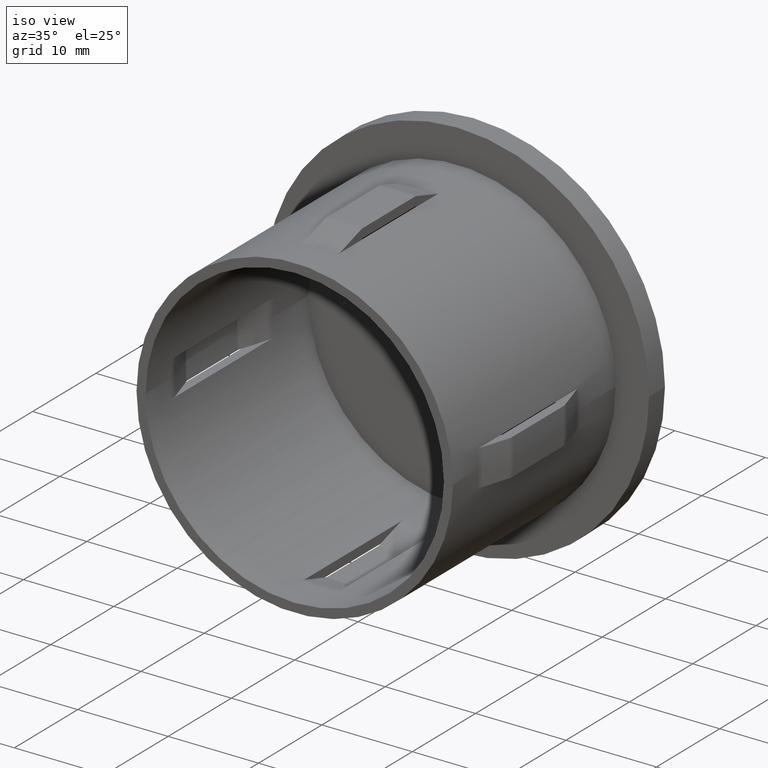
[diagram: clean part render]
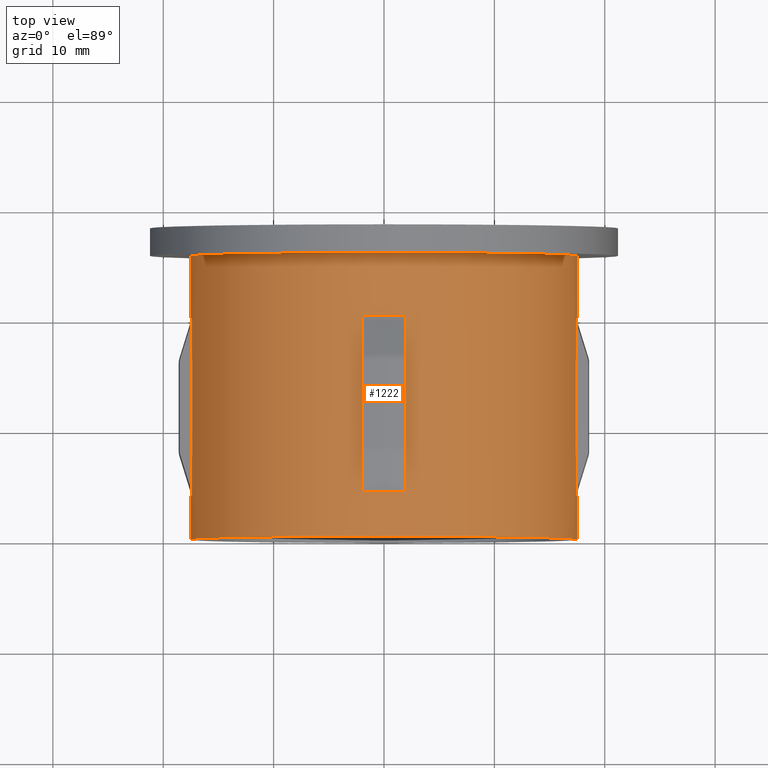
[diagram: tour spotlight — one face highlighted and labeled with its STEP entity id]
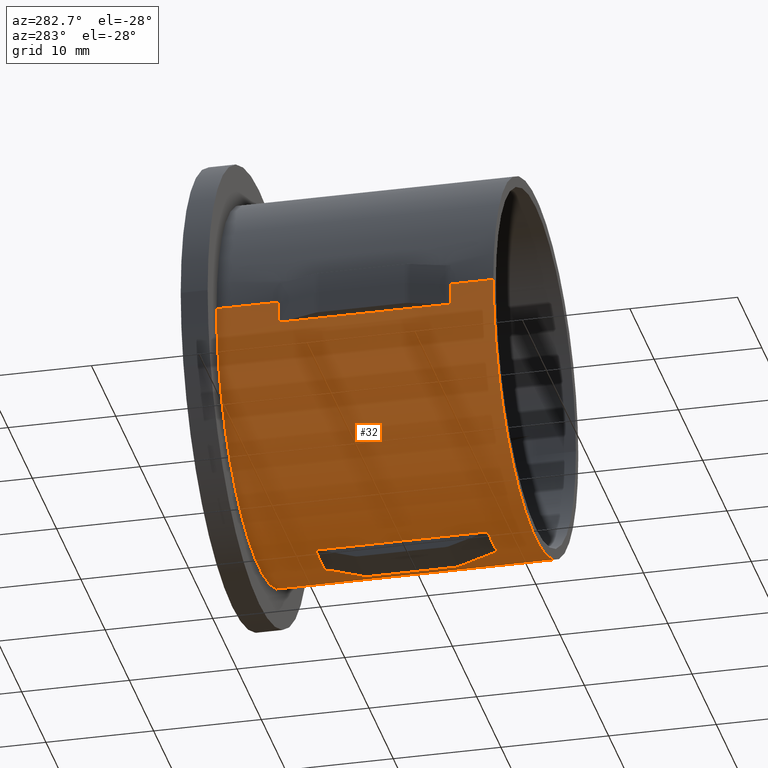
[diagram: tour spotlight — one face highlighted and labeled with its STEP entity id]
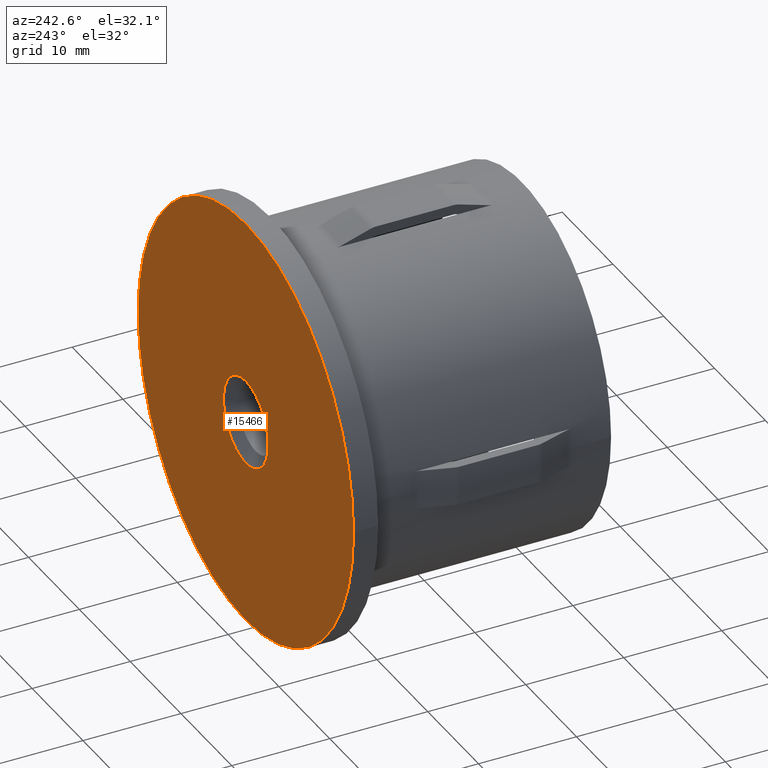
[diagram: tour spotlight — one face highlighted and labeled with its STEP entity id]
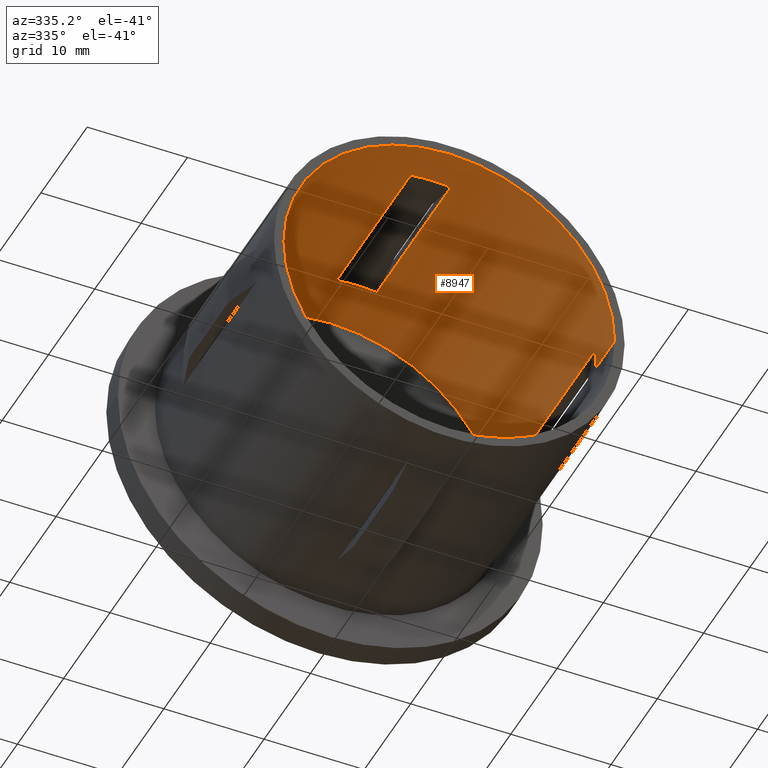
[diagram: tour spotlight — one face highlighted and labeled with its STEP entity id]
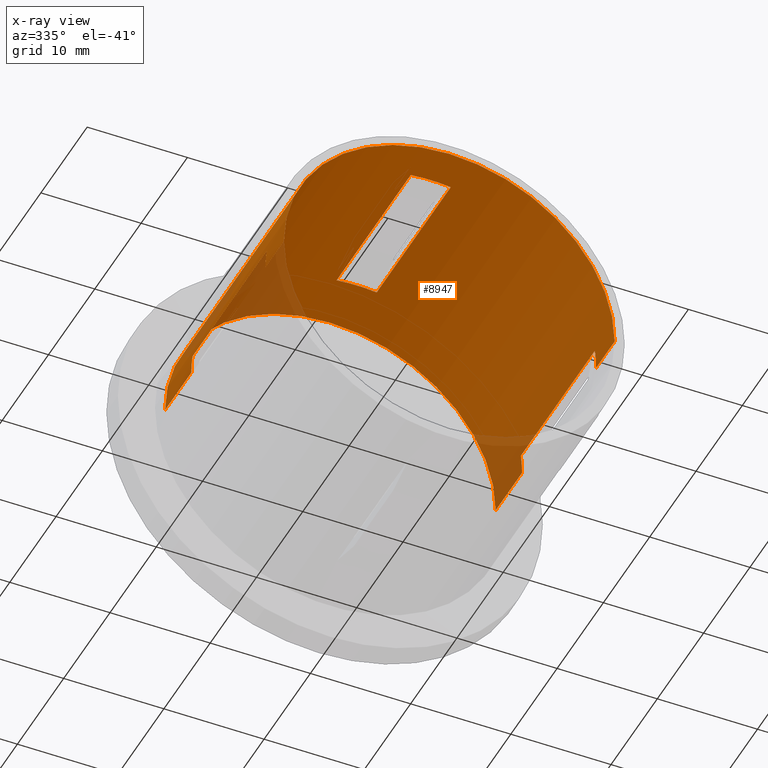
[diagram: x-ray of the same camera — body ghosted, this tour face saturated]
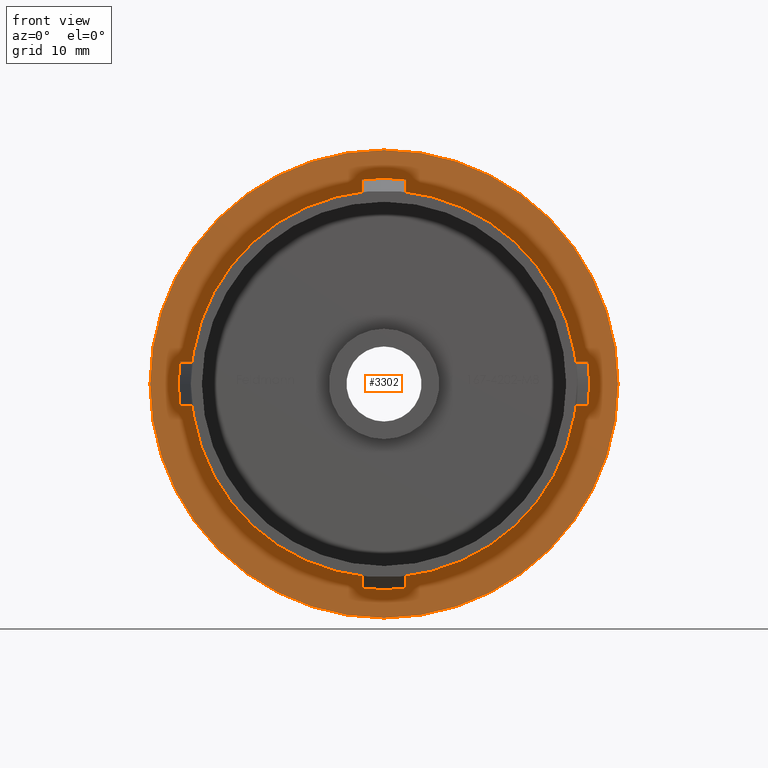
[diagram: tour spotlight — one face highlighted and labeled with its STEP entity id]
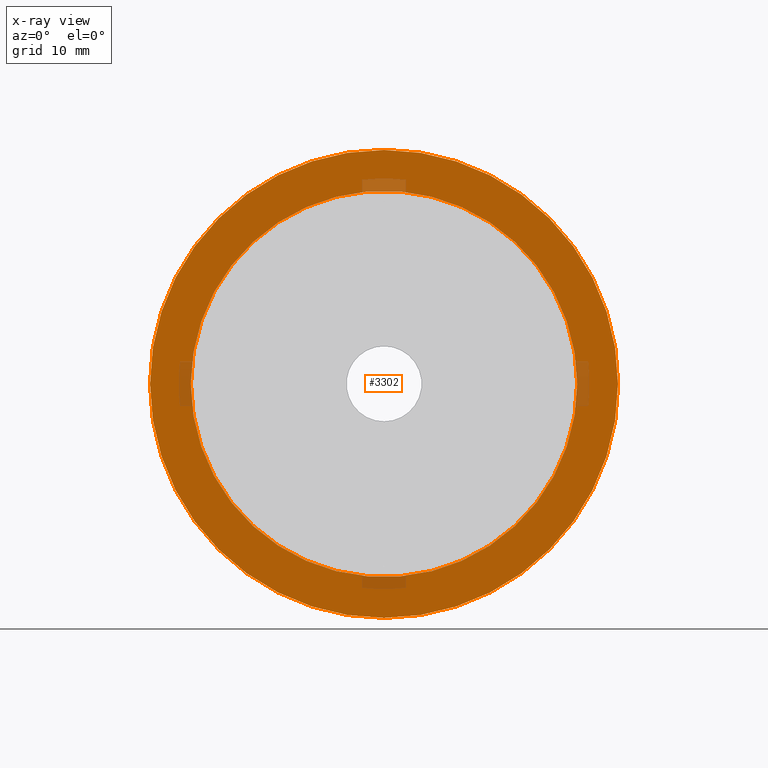
[diagram: x-ray of the same camera — body ghosted, this tour face saturated]
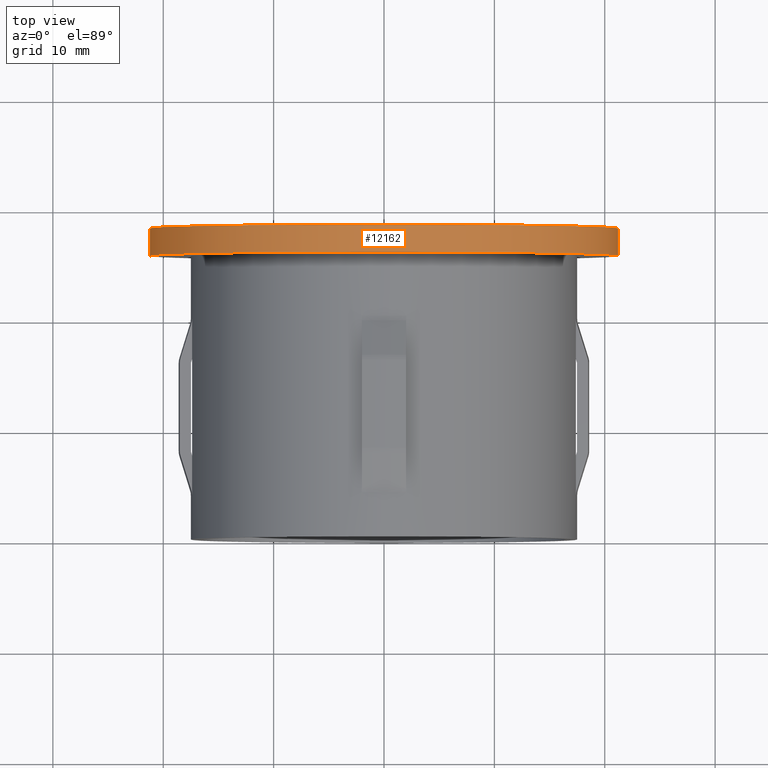
[diagram: tour spotlight — one face highlighted and labeled with its STEP entity id]
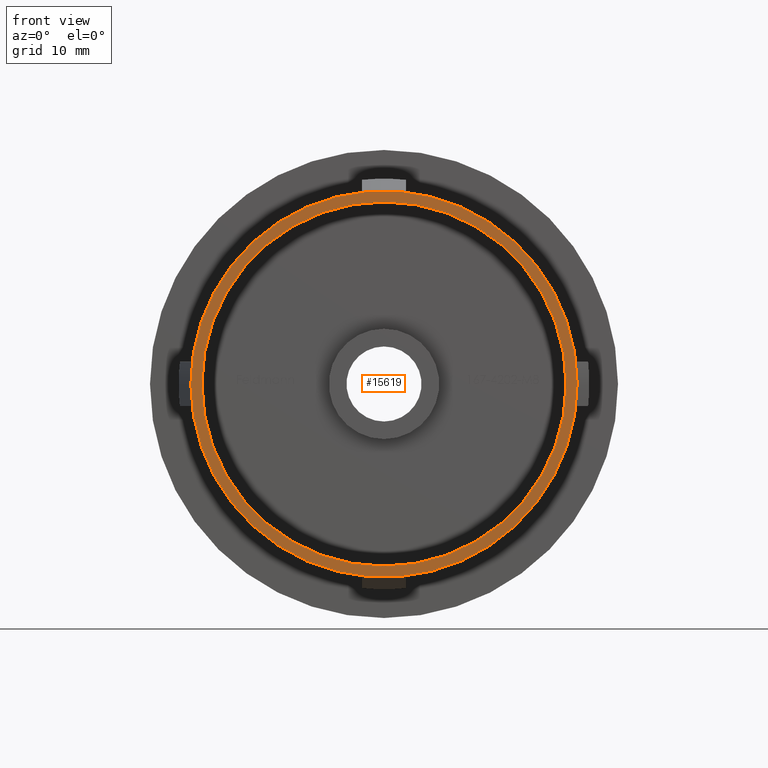
[diagram: tour spotlight — one face highlighted and labeled with its STEP entity id]
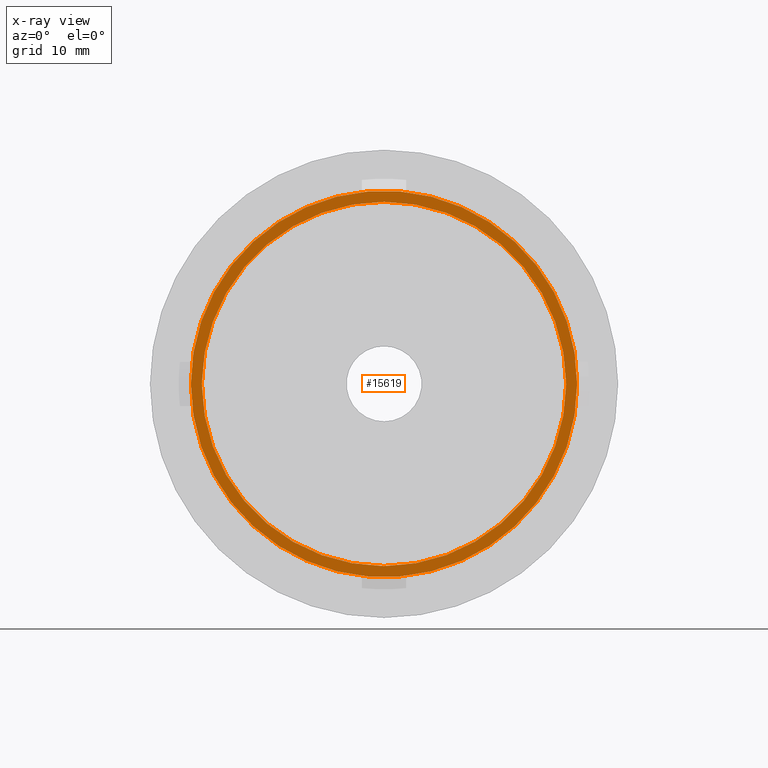
[diagram: x-ray of the same camera — body ghosted, this tour face saturated]
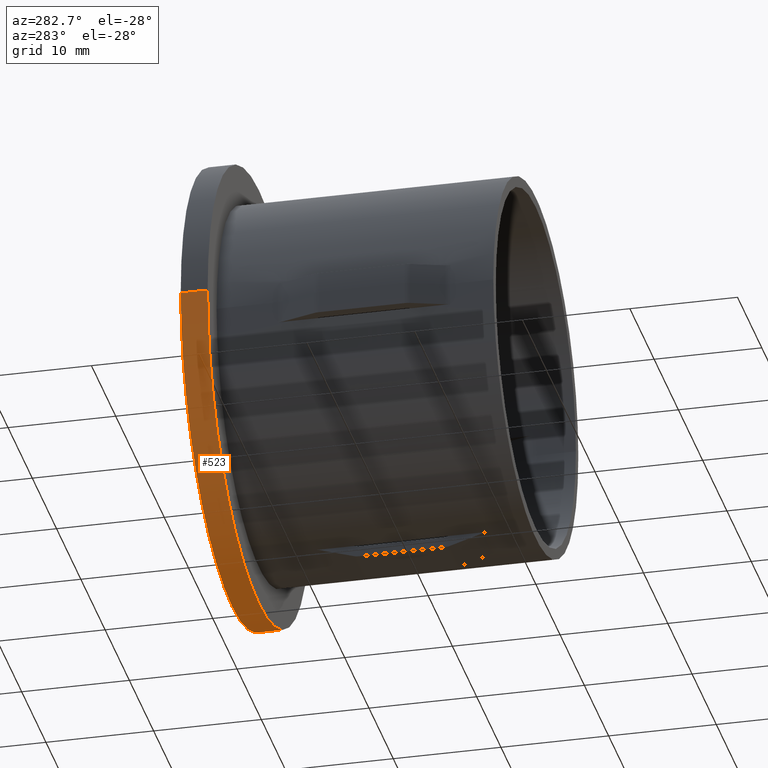
[diagram: tour spotlight — one face highlighted and labeled with its STEP entity id]
A machine part: a face-by-face anatomy tour. The part has 340 B-rep faces; the first image is the clean iso view, then the 8 largest visible faces are spotlighted one at a time (largest first), each with its STEP entity span.

Face 1 — top view, entity #1222. In plain terms, the highlighted cylindrical surface (partial cylindrical patch) has radius 17.5 mm, axis along (-0, 1, -0).
Definition (entity closure, byte-faithful):
#103 = LINE ( 'NONE', #13984, #15191 ) ;
#142 = LINE ( 'NONE', #12923, #5600 ) ;
#157 = EDGE_CURVE ( 'NONE', #10400, #1745, #11953, .T. ) ;
#228 = EDGE_CURVE ( 'NONE', #14259, #10146, #7031, .T. ) ;
#273 = EDGE_CURVE ( 'NONE', #5085, #13931, #10587, .T. ) ;
#467 = VECTOR ( 'NONE', #6357, 1000.000000000000000 ) ;
#525 = ORIENTED_EDGE ( 'NONE', *, *, #9101, .F. ) ;
#573 = VERTEX_POINT ( 'NONE', #9361 ) ;
#630 = CARTESIAN_POINT ( 'NONE',  ( 17.49999999999999600, 19.99999999999999600, 2.143131898507867900E-015 ) ) ;
#971 = VERTEX_POINT ( 'NONE', #1737 ) ;
#981 = CARTESIAN_POINT ( 'NONE',  ( -1.999999999999996700, 3.999999999999993300, 17.38533865071371000 ) ) ;
#996 = DIRECTION ( 'NONE',  ( -0.0000000000000000000, -1.000000000000000000, -0.0000000000000000000 ) ) ;
#1146 = AXIS2_PLACEMENT_3D ( 'NONE', #4100, #14352, #15586 ) ;
#1191 = ORIENTED_EDGE ( 'NONE', *, *, #12885, .T. ) ;
#1222 = ADVANCED_FACE ( 'NONE', ( #9966, #1347 ), #3689, .T. ) ;
#1244 = CIRCLE ( 'NONE', #11420, 17.50000000000000000 ) ;
#1332 = CARTESIAN_POINT ( 'NONE',  ( 17.38533865071371700, 7.601915560991670900, 2.000000000000000000 ) ) ;
#1347 = FACE_OUTER_BOUND ( 'NONE', #9499, .T. ) ;
#1365 = VERTEX_POINT ( 'NONE', #4379 ) ;
#1496 = VERTEX_POINT ( 'NONE', #16045 ) ;
#1657 = DIRECTION ( 'NONE',  ( -1.714505518806297100E-016, 1.000000000000000000, -0.0000000000000000000 ) ) ;
#1737 = CARTESIAN_POINT ( 'NONE',  ( -1.999999999999996200, 19.99999999999999300, 17.38533865071370600 ) ) ;
#1745 = VERTEX_POINT ( 'NONE', #11410 ) ;
#1762 = ORIENTED_EDGE ( 'NONE', *, *, #10659, .T. ) ;
#1964 = EDGE_CURVE ( 'NONE', #6986, #2189, #7389, .T. ) ;
#1997 = CARTESIAN_POINT ( 'NONE',  ( 3.904173995681768100E-015, 3.999999999999996400, 0.0000000000000000000 ) ) ;
#2112 = DIRECTION ( 'NONE',  ( -1.714505518806297100E-016, 1.000000000000000000, -0.0000000000000000000 ) ) ;
#2150 = DIRECTION ( 'NONE',  ( -1.714505518806297100E-016, 1.000000000000000000, -0.0000000000000000000 ) ) ;
#2189 = VERTEX_POINT ( 'NONE', #10792 ) ;
#2432 = EDGE_LOOP ( 'NONE', ( #1191, #1762, #7772, #6266, #15794, #9689, #12475, #10482 ) ) ;
#2715 = CARTESIAN_POINT ( 'NONE',  ( -1.999999999999996700, 20.00000000000000000, 17.38533865071371000 ) ) ;
#3017 = CARTESIAN_POINT ( 'NONE',  ( -17.38533865071371000, 20.00000000000000000, 2.000000000000000000 ) ) ;
#3060 = LINE ( 'NONE', #2715, #11488 ) ;
#3244 = ORIENTED_EDGE ( 'NONE', *, *, #8820, .T. ) ;
#3345 = DIRECTION ( 'NONE',  ( -0.0000000000000000000, -1.000000000000000000, -0.0000000000000000000 ) ) ;
#3471 = DIRECTION ( 'NONE',  ( -1.714505518806297100E-016, 1.000000000000000000, -0.0000000000000000000 ) ) ;
#3622 = AXIS2_PLACEMENT_3D ( 'NONE', #10964, #2150, #10910 ) ;
#3623 = VECTOR ( 'NONE', #7119, 1000.000000000000000 ) ;
#3683 = EDGE_CURVE ( 'NONE', #16007, #13188, #3847, .T. ) ;
#3689 = CYLINDRICAL_SURFACE ( 'NONE', #9676, 17.50000000000000000 ) ;
#3710 = DIRECTION ( 'NONE',  ( 0.0000000000000000000, -1.000000000000000000, 0.0000000000000000000 ) ) ;
#3847 = LINE ( 'NONE', #9163, #12662 ) ;
#3912 = AXIS2_PLACEMENT_3D ( 'NONE', #8885, #11528, #12782 ) ;
#3976 = DIRECTION ( 'NONE',  ( -0.0000000000000000000, -1.000000000000000000, -0.0000000000000000000 ) ) ;
#4079 = VECTOR ( 'NONE', #11579, 1000.000000000000000 ) ;
#4100 = CARTESIAN_POINT ( 'NONE',  ( 3.904173995681768100E-015, 3.999999999999996400, 0.0000000000000000000 ) ) ;
#4123 = CARTESIAN_POINT ( 'NONE',  ( -2.449293598294708900E-016, 28.19999999999999900, 0.0000000000000000000 ) ) ;
#4136 = CIRCLE ( 'NONE', #13445, 17.49999999999999600 ) ;
#4184 = VERTEX_POINT ( 'NONE', #11206 ) ;
#4235 = ORIENTED_EDGE ( 'NONE', *, *, #157, .F. ) ;
#4314 = DIRECTION ( 'NONE',  ( -1.714505518806297100E-016, 1.000000000000000000, -0.0000000000000000000 ) ) ;
#4367 = CARTESIAN_POINT ( 'NONE',  ( -17.49999999999999600, 19.99999999999998900, 0.0000000000000000000 ) ) ;
#4379 = CARTESIAN_POINT ( 'NONE',  ( 2.000000000000004400, 16.39808443900831800, 17.38533865071371300 ) ) ;
#4560 = CARTESIAN_POINT ( 'NONE',  ( -17.38533865071371000, 47.45815458154230300, 2.000000000000000000 ) ) ;
#4697 = CARTESIAN_POINT ( 'NONE',  ( 2.000000000000004400, 3.999999999999993300, 17.38533865071371300 ) ) ;
#5044 = EDGE_CURVE ( 'NONE', #1496, #11977, #5380, .T. ) ;
#5085 = VERTEX_POINT ( 'NONE', #15788 ) ;
#5094 = DIRECTION ( 'NONE',  ( -1.000000000000000000, -1.982541115402065600E-016, 0.0000000000000000000 ) ) ;
#5174 = VECTOR ( 'NONE', #996, 1000.000000000000000 ) ;
#5262 = EDGE_CURVE ( 'NONE', #4184, #1496, #103, .T. ) ;
#5272 = AXIS2_PLACEMENT_3D ( 'NONE', #11914, #9287, #6699 ) ;
#5323 = ORIENTED_EDGE ( 'NONE', *, *, #7612, .T. ) ;
#5369 = VERTEX_POINT ( 'NONE', #7937 ) ;
#5380 = LINE ( 'NONE', #4560, #3623 ) ;
#5474 = DIRECTION ( 'NONE',  ( -1.000000000000000000, -1.982541115402065400E-016, 0.0000000000000000000 ) ) ;
#5476 = ORIENTED_EDGE ( 'NONE', *, *, #228, .T. ) ;
#5563 = EDGE_CURVE ( 'NONE', #16007, #5369, #15959, .T. ) ;
#5600 = VECTOR ( 'NONE', #10345, 1000.000000000000000 ) ;
#5618 = EDGE_CURVE ( 'NONE', #14259, #15407, #15570, .T. ) ;
#5654 = DIRECTION ( 'NONE',  ( -1.000000000000000000, -1.486905836551548800E-016, 0.0000000000000000000 ) ) ;
#5659 = CARTESIAN_POINT ( 'NONE',  ( -1.999999999999996700, 7.601915560991660200, 17.38533865071371000 ) ) ;
#5809 = VECTOR ( 'NONE', #9322, 1000.000000000000000 ) ;
#6090 = ORIENTED_EDGE ( 'NONE', *, *, #5044, .T. ) ;
#6105 = CARTESIAN_POINT ( 'NONE',  ( -17.49999999999999600, -6.469831609864634800E-015, 0.0000000000000000000 ) ) ;
#6266 = ORIENTED_EDGE ( 'NONE', *, *, #9694, .F. ) ;
#6357 = DIRECTION ( 'NONE',  ( -0.0000000000000000000, -1.000000000000000000, -0.0000000000000000000 ) ) ;
#6402 = CARTESIAN_POINT ( 'NONE',  ( 1.160965165591693700E-015, 19.99999999999999300, 0.0000000000000000000 ) ) ;
#6419 = CARTESIAN_POINT ( 'NONE',  ( 17.38533865071370600, 19.99999999999999600, 1.999999999999999600 ) ) ;
#6511 = EDGE_CURVE ( 'NONE', #971, #11534, #12033, .T. ) ;
#6571 = VECTOR ( 'NONE', #3345, 1000.000000000000000 ) ;
#6699 = DIRECTION ( 'NONE',  ( -1.000000000000000000, -1.486905836551548800E-016, 0.0000000000000000000 ) ) ;
#6946 = CIRCLE ( 'NONE', #1146, 17.50000000000000000 ) ;
#6986 = VERTEX_POINT ( 'NONE', #4367 ) ;
#7031 = CIRCLE ( 'NONE', #3622, 17.49999999999999600 ) ;
#7119 = DIRECTION ( 'NONE',  ( 0.0000000000000000000, -1.000000000000000000, 0.0000000000000000000 ) ) ;
#7183 = LINE ( 'NONE', #3017, #5809 ) ;
#7216 = CARTESIAN_POINT ( 'NONE',  ( 17.38533865071371700, 20.00000000000000000, 2.000000000000000000 ) ) ;
#7340 = EDGE_CURVE ( 'NONE', #15025, #10697, #12134, .T. ) ;
#7361 = LINE ( 'NONE', #11220, #13078 ) ;
#7389 = LINE ( 'NONE', #12722, #4079 ) ;
#7539 = CARTESIAN_POINT ( 'NONE',  ( -1.999999999999996700, 47.45815458154230300, 17.38533865071371000 ) ) ;
#7607 = DIRECTION ( 'NONE',  ( -0.0000000000000000000, -1.000000000000000000, -0.0000000000000000000 ) ) ;
#7612 = EDGE_CURVE ( 'NONE', #5369, #8880, #13107, .T. ) ;
#7622 = ORIENTED_EDGE ( 'NONE', *, *, #13054, .F. ) ;
#7772 = ORIENTED_EDGE ( 'NONE', *, *, #7340, .F. ) ;
#7883 = CARTESIAN_POINT ( 'NONE',  ( 17.50000000000000400, 3.999999999999999100, 2.143131898507868600E-015 ) ) ;
#7937 = CARTESIAN_POINT ( 'NONE',  ( 17.50000000000000400, -4.690622940425938900E-016, 2.143131898507868600E-015 ) ) ;
#7982 = ORIENTED_EDGE ( 'NONE', *, *, #11521, .F. ) ;
#8026 = VECTOR ( 'NONE', #14794, 1000.000000000000000 ) ;
#8029 = EDGE_CURVE ( 'NONE', #971, #5085, #12297, .T. ) ;
#8098 = CARTESIAN_POINT ( 'NONE',  ( 2.000000000000004400, 7.601915560991691300, 17.38533865071371300 ) ) ;
#8301 = DIRECTION ( 'NONE',  ( -0.0000000000000000000, -1.000000000000000000, -0.0000000000000000000 ) ) ;
#8363 = CARTESIAN_POINT ( 'NONE',  ( -17.38533865071371000, 7.601915560991660200, 2.000000000000000000 ) ) ;
#8471 = LINE ( 'NONE', #8782, #467 ) ;
#8586 = CARTESIAN_POINT ( 'NONE',  ( 4.589976203204287100E-015, -3.469446951953614200E-015, 0.0000000000000000000 ) ) ;
#8782 = CARTESIAN_POINT ( 'NONE',  ( 2.000000000000004400, 20.00000000000000000, 17.38533865071371300 ) ) ;
#8799 = VERTEX_POINT ( 'NONE', #8098 ) ;
#8818 = DIRECTION ( 'NONE',  ( 0.0000000000000000000, -1.000000000000000000, 0.0000000000000000000 ) ) ;
#8820 = EDGE_CURVE ( 'NONE', #11977, #13287, #7183, .T. ) ;
#8823 = DIRECTION ( 'NONE',  ( -1.714505518806297100E-016, 1.000000000000000000, -0.0000000000000000000 ) ) ;
#8880 = VERTEX_POINT ( 'NONE', #7883 ) ;
#8885 = CARTESIAN_POINT ( 'NONE',  ( 1.160965165591693700E-015, 19.99999999999999300, 0.0000000000000000000 ) ) ;
#8889 = CARTESIAN_POINT ( 'NONE',  ( -17.38533865071371000, 3.999999999999993300, 2.000000000000000000 ) ) ;
#8965 = VECTOR ( 'NONE', #8301, 1000.000000000000000 ) ;
#8974 = ORIENTED_EDGE ( 'NONE', *, *, #5262, .T. ) ;
#9101 = EDGE_CURVE ( 'NONE', #15407, #10400, #7361, .T. ) ;
#9163 = CARTESIAN_POINT ( 'NONE',  ( -17.50000000000000000, 28.19999999999999600, 0.0000000000000000000 ) ) ;
#9197 = CARTESIAN_POINT ( 'NONE',  ( 2.000000000000004400, 20.00000000000000000, 17.38533865071371300 ) ) ;
#9287 = DIRECTION ( 'NONE',  ( -1.714505518806297100E-016, 1.000000000000000000, -0.0000000000000000000 ) ) ;
#9322 = DIRECTION ( 'NONE',  ( -0.0000000000000000000, -1.000000000000000000, -0.0000000000000000000 ) ) ;
#9352 = EDGE_CURVE ( 'NONE', #10146, #573, #142, .T. ) ;
#9361 = CARTESIAN_POINT ( 'NONE',  ( 17.50000000000000000, 25.69999999999999900, 2.143131898507868200E-015 ) ) ;
#9499 = EDGE_LOOP ( 'NONE', ( #9962, #5323, #7982, #4235, #525, #15719, #5476, #10849, #9958, #14171, #16036, #8974, #6090, #3244, #7622, #13642 ) ) ;
#9676 = AXIS2_PLACEMENT_3D ( 'NONE', #4123, #1657, #5474 ) ;
#9689 = ORIENTED_EDGE ( 'NONE', *, *, #8029, .F. ) ;
#9694 = EDGE_CURVE ( 'NONE', #13931, #15025, #3060, .T. ) ;
#9726 = DIRECTION ( 'NONE',  ( -1.000000000000000000, -1.982541115402065400E-016, 0.0000000000000000000 ) ) ;
#9830 = CARTESIAN_POINT ( 'NONE',  ( 1.836970198721037300E-016, 25.69999999999999600, 0.0000000000000000000 ) ) ;
#9958 = ORIENTED_EDGE ( 'NONE', *, *, #13153, .F. ) ;
#9962 = ORIENTED_EDGE ( 'NONE', *, *, #5563, .T. ) ;
#9966 = FACE_BOUND ( 'NONE', #2432, .T. ) ;
#10047 = AXIS2_PLACEMENT_3D ( 'NONE', #1997, #2112, #5654 ) ;
#10049 = VECTOR ( 'NONE', #12972, 1000.000000000000000 ) ;
#10146 = VERTEX_POINT ( 'NONE', #630 ) ;
#10345 = DIRECTION ( 'NONE',  ( -1.714505518806297100E-016, 1.000000000000000000, -0.0000000000000000000 ) ) ;
#10400 = VERTEX_POINT ( 'NONE', #1332 ) ;
#10482 = ORIENTED_EDGE ( 'NONE', *, *, #13374, .T. ) ;
#10587 = LINE ( 'NONE', #7539, #14501 ) ;
#10610 = CARTESIAN_POINT ( 'NONE',  ( 2.000000000000004400, 47.45815458154230300, 17.38533865071371300 ) ) ;
#10659 = EDGE_CURVE ( 'NONE', #8799, #10697, #11857, .T. ) ;
#10697 = VERTEX_POINT ( 'NONE', #4697 ) ;
#10792 = CARTESIAN_POINT ( 'NONE',  ( -17.50000000000000000, 25.69999999999999200, 0.0000000000000000000 ) ) ;
#10849 = ORIENTED_EDGE ( 'NONE', *, *, #9352, .T. ) ;
#10910 = DIRECTION ( 'NONE',  ( -1.000000000000000000, -1.982541115402065600E-016, 0.0000000000000000000 ) ) ;
#10952 = DIRECTION ( 'NONE',  ( -1.000000000000000000, -1.714505518806297300E-016, 0.0000000000000000000 ) ) ;
#10964 = CARTESIAN_POINT ( 'NONE',  ( 1.160965165591693700E-015, 19.99999999999999300, 0.0000000000000000000 ) ) ;
#11206 = CARTESIAN_POINT ( 'NONE',  ( -17.38533865071371000, 20.00000000000000000, 2.000000000000000000 ) ) ;
#11220 = CARTESIAN_POINT ( 'NONE',  ( 17.38533865071371700, 47.45815458154230300, 2.000000000000000000 ) ) ;
#11410 = CARTESIAN_POINT ( 'NONE',  ( 17.38533865071371700, 3.999999999999993300, 2.000000000000000000 ) ) ;
#11420 = AXIS2_PLACEMENT_3D ( 'NONE', #9830, #3471, #9726 ) ;
#11488 = VECTOR ( 'NONE', #3976, 1000.000000000000000 ) ;
#11521 = EDGE_CURVE ( 'NONE', #1745, #8880, #6946, .T. ) ;
#11528 = DIRECTION ( 'NONE',  ( -1.714505518806297100E-016, 1.000000000000000000, -0.0000000000000000000 ) ) ;
#11534 = VERTEX_POINT ( 'NONE', #9197 ) ;
#11579 = DIRECTION ( 'NONE',  ( -1.714505518806297100E-016, 1.000000000000000000, -0.0000000000000000000 ) ) ;
#11585 = DIRECTION ( 'NONE',  ( -1.714505518806297100E-016, 1.000000000000000000, -0.0000000000000000000 ) ) ;
#11857 = LINE ( 'NONE', #14573, #6571 ) ;
#11914 = CARTESIAN_POINT ( 'NONE',  ( 3.904173995681768100E-015, 3.999999999999996400, 0.0000000000000000000 ) ) ;
#11953 = LINE ( 'NONE', #14748, #8026 ) ;
#11977 = VERTEX_POINT ( 'NONE', #8363 ) ;
#12033 = CIRCLE ( 'NONE', #3912, 17.49999999999999600 ) ;
#12134 = CIRCLE ( 'NONE', #5272, 17.50000000000000000 ) ;
#12210 = LINE ( 'NONE', #10610, #10049 ) ;
#12297 = LINE ( 'NONE', #13466, #8965 ) ;
#12475 = ORIENTED_EDGE ( 'NONE', *, *, #6511, .T. ) ;
#12662 = VECTOR ( 'NONE', #11585, 1000.000000000000000 ) ;
#12722 = CARTESIAN_POINT ( 'NONE',  ( -17.50000000000000000, 28.19999999999999600, 0.0000000000000000000 ) ) ;
#12782 = DIRECTION ( 'NONE',  ( -1.000000000000000000, -1.982541115402065600E-016, 0.0000000000000000000 ) ) ;
#12885 = EDGE_CURVE ( 'NONE', #1365, #8799, #12210, .T. ) ;
#12923 = CARTESIAN_POINT ( 'NONE',  ( 17.50000000000000000, 28.20000000000000300, 2.143131898507868200E-015 ) ) ;
#12972 = DIRECTION ( 'NONE',  ( 0.0000000000000000000, -1.000000000000000000, 0.0000000000000000000 ) ) ;
#13054 = EDGE_CURVE ( 'NONE', #13188, #13287, #14759, .T. ) ;
#13078 = VECTOR ( 'NONE', #3710, 1000.000000000000000 ) ;
#13107 = LINE ( 'NONE', #13141, #14109 ) ;
#13141 = CARTESIAN_POINT ( 'NONE',  ( 17.50000000000000000, 28.20000000000000300, 2.143131898507868200E-015 ) ) ;
#13153 = EDGE_CURVE ( 'NONE', #2189, #573, #1244, .T. ) ;
#13188 = VERTEX_POINT ( 'NONE', #14926 ) ;
#13287 = VERTEX_POINT ( 'NONE', #8889 ) ;
#13374 = EDGE_CURVE ( 'NONE', #11534, #1365, #8471, .T. ) ;
#13445 = AXIS2_PLACEMENT_3D ( 'NONE', #6402, #8823, #5094 ) ;
#13466 = CARTESIAN_POINT ( 'NONE',  ( -1.999999999999996700, 20.00000000000000000, 17.38533865071371000 ) ) ;
#13642 = ORIENTED_EDGE ( 'NONE', *, *, #3683, .F. ) ;
#13931 = VERTEX_POINT ( 'NONE', #5659 ) ;
#13984 = CARTESIAN_POINT ( 'NONE',  ( -17.38533865071371000, 20.00000000000000000, 2.000000000000000000 ) ) ;
#14109 = VECTOR ( 'NONE', #4314, 1000.000000000000000 ) ;
#14171 = ORIENTED_EDGE ( 'NONE', *, *, #1964, .F. ) ;
#14172 = CARTESIAN_POINT ( 'NONE',  ( 17.38533865071371700, 16.39808443900832200, 2.000000000000000000 ) ) ;
#14259 = VERTEX_POINT ( 'NONE', #6419 ) ;
#14352 = DIRECTION ( 'NONE',  ( -1.714505518806297100E-016, 1.000000000000000000, -0.0000000000000000000 ) ) ;
#14501 = VECTOR ( 'NONE', #8818, 1000.000000000000000 ) ;
#14573 = CARTESIAN_POINT ( 'NONE',  ( 2.000000000000004400, 20.00000000000000000, 17.38533865071371300 ) ) ;
#14748 = CARTESIAN_POINT ( 'NONE',  ( 17.38533865071371700, 20.00000000000000000, 2.000000000000000000 ) ) ;
#14759 = CIRCLE ( 'NONE', #10047, 17.50000000000000000 ) ;
#14794 = DIRECTION ( 'NONE',  ( -0.0000000000000000000, -1.000000000000000000, -0.0000000000000000000 ) ) ;
#14842 = DIRECTION ( 'NONE',  ( -1.714505518806297100E-016, 1.000000000000000000, -0.0000000000000000000 ) ) ;
#14926 = CARTESIAN_POINT ( 'NONE',  ( -17.49999999999999600, 3.999999999999994200, 0.0000000000000000000 ) ) ;
#15025 = VERTEX_POINT ( 'NONE', #981 ) ;
#15191 = VECTOR ( 'NONE', #7607, 1000.000000000000000 ) ;
#15282 = AXIS2_PLACEMENT_3D ( 'NONE', #8586, #14842, #10952 ) ;
#15407 = VERTEX_POINT ( 'NONE', #14172 ) ;
#15570 = LINE ( 'NONE', #7216, #5174 ) ;
#15586 = DIRECTION ( 'NONE',  ( -1.000000000000000000, -1.486905836551548800E-016, 0.0000000000000000000 ) ) ;
#15719 = ORIENTED_EDGE ( 'NONE', *, *, #5618, .F. ) ;
#15747 = EDGE_CURVE ( 'NONE', #6986, #4184, #4136, .T. ) ;
#15788 = CARTESIAN_POINT ( 'NONE',  ( -1.999999999999996700, 16.39808443900832200, 17.38533865071371000 ) ) ;
#15794 = ORIENTED_EDGE ( 'NONE', *, *, #273, .F. ) ;
#15959 = CIRCLE ( 'NONE', #15282, 17.50000000000000000 ) ;
#16007 = VERTEX_POINT ( 'NONE', #6105 ) ;
#16036 = ORIENTED_EDGE ( 'NONE', *, *, #15747, .T. ) ;
#16045 = CARTESIAN_POINT ( 'NONE',  ( -17.38533865071371000, 16.39808443900832600, 2.000000000000000000 ) ) ;

Face 2 — auxiliary view, entity #32. In plain terms, the highlighted cylindrical surface (partial cylindrical patch) has radius 17.5 mm, axis along (-0, 1, -0).
Definition (entity closure, byte-faithful):
#32 = ADVANCED_FACE ( 'NONE', ( #5269, #4307 ), #2739, .T. ) ;
#124 = CARTESIAN_POINT ( 'NONE',  ( -1.999999999999996700, 7.601915560991662000, -17.38533865071371300 ) ) ;
#142 = LINE ( 'NONE', #12923, #5600 ) ;
#377 = ORIENTED_EDGE ( 'NONE', *, *, #11665, .F. ) ;
#573 = VERTEX_POINT ( 'NONE', #9361 ) ;
#614 = EDGE_LOOP ( 'NONE', ( #2197, #10518, #8927, #7066, #11002, #3890, #938, #377 ) ) ;
#630 = CARTESIAN_POINT ( 'NONE',  ( 17.49999999999999600, 19.99999999999999600, 2.143131898507867900E-015 ) ) ;
#651 = DIRECTION ( 'NONE',  ( 0.0000000000000000000, -1.000000000000000000, 0.0000000000000000000 ) ) ;
#745 = DIRECTION ( 'NONE',  ( -1.714505518806297100E-016, 1.000000000000000000, -0.0000000000000000000 ) ) ;
#763 = CARTESIAN_POINT ( 'NONE',  ( -17.38533865071371000, 47.45815458154230300, -2.000000000000000000 ) ) ;
#801 = CARTESIAN_POINT ( 'NONE',  ( 17.38533865071371700, 20.00000000000000000, -2.000000000000000000 ) ) ;
#912 = VERTEX_POINT ( 'NONE', #6492 ) ;
#921 = EDGE_CURVE ( 'NONE', #14527, #13100, #1748, .T. ) ;
#938 = ORIENTED_EDGE ( 'NONE', *, *, #2917, .F. ) ;
#1079 = CARTESIAN_POINT ( 'NONE',  ( -1.999999999999996700, 47.45815458154230300, -17.38533865071371300 ) ) ;
#1138 = ORIENTED_EDGE ( 'NONE', *, *, #8041, .T. ) ;
#1311 = AXIS2_PLACEMENT_3D ( 'NONE', #4347, #745, #9491 ) ;
#1558 = EDGE_CURVE ( 'NONE', #8880, #15605, #6416, .T. ) ;
#1602 = DIRECTION ( 'NONE',  ( -1.714505518806297100E-016, 1.000000000000000000, -0.0000000000000000000 ) ) ;
#1662 = AXIS2_PLACEMENT_3D ( 'NONE', #11922, #10658, #3156 ) ;
#1748 = CIRCLE ( 'NONE', #11041, 17.50000000000000000 ) ;
#1880 = DIRECTION ( 'NONE',  ( -1.000000000000000000, -1.714505518806297300E-016, 0.0000000000000000000 ) ) ;
#1964 = EDGE_CURVE ( 'NONE', #6986, #2189, #7389, .T. ) ;
#2007 = EDGE_CURVE ( 'NONE', #9906, #7030, #7006, .T. ) ;
#2189 = VERTEX_POINT ( 'NONE', #10792 ) ;
#2197 = ORIENTED_EDGE ( 'NONE', *, *, #5201, .F. ) ;
#2259 = ORIENTED_EDGE ( 'NONE', *, *, #2732, .T. ) ;
#2323 = DIRECTION ( 'NONE',  ( -1.714505518806297100E-016, 1.000000000000000000, -0.0000000000000000000 ) ) ;
#2419 = DIRECTION ( 'NONE',  ( -0.0000000000000000000, -1.000000000000000000, -0.0000000000000000000 ) ) ;
#2490 = AXIS2_PLACEMENT_3D ( 'NONE', #11886, #1602, #13103 ) ;
#2536 = CARTESIAN_POINT ( 'NONE',  ( 17.38533865071371700, 20.00000000000000000, -2.000000000000000000 ) ) ;
#2579 = DIRECTION ( 'NONE',  ( -0.0000000000000000000, -1.000000000000000000, -0.0000000000000000000 ) ) ;
#2623 = LINE ( 'NONE', #16016, #12424 ) ;
#2732 = EDGE_CURVE ( 'NONE', #912, #15605, #11516, .T. ) ;
#2739 = CYLINDRICAL_SURFACE ( 'NONE', #14868, 17.50000000000000000 ) ;
#2791 = EDGE_CURVE ( 'NONE', #5369, #16007, #15243, .T. ) ;
#2864 = DIRECTION ( 'NONE',  ( -1.000000000000000000, -1.982541115402065600E-016, 0.0000000000000000000 ) ) ;
#2917 = EDGE_CURVE ( 'NONE', #6253, #14527, #5595, .T. ) ;
#3156 = DIRECTION ( 'NONE',  ( -1.000000000000000000, -1.982541115402065600E-016, 0.0000000000000000000 ) ) ;
#3280 = VECTOR ( 'NONE', #12020, 1000.000000000000000 ) ;
#3615 = CARTESIAN_POINT ( 'NONE',  ( 17.38533865071371700, 3.999999999999993300, -2.000000000000000000 ) ) ;
#3683 = EDGE_CURVE ( 'NONE', #16007, #13188, #3847, .T. ) ;
#3740 = EDGE_CURVE ( 'NONE', #10146, #6459, #8544, .T. ) ;
#3803 = CARTESIAN_POINT ( 'NONE',  ( 17.38533865071371700, 16.39808443900830800, -2.000000000000000000 ) ) ;
#3829 = LINE ( 'NONE', #9327, #5396 ) ;
#3837 = EDGE_CURVE ( 'NONE', #7232, #912, #3829, .T. ) ;
#3847 = LINE ( 'NONE', #9163, #12662 ) ;
#3890 = ORIENTED_EDGE ( 'NONE', *, *, #921, .F. ) ;
#4079 = VECTOR ( 'NONE', #11579, 1000.000000000000000 ) ;
#4307 = FACE_BOUND ( 'NONE', #614, .T. ) ;
#4309 = CARTESIAN_POINT ( 'NONE',  ( 3.904173995681768100E-015, 3.999999999999996400, 0.0000000000000000000 ) ) ;
#4314 = DIRECTION ( 'NONE',  ( -1.714505518806297100E-016, 1.000000000000000000, -0.0000000000000000000 ) ) ;
#4347 = CARTESIAN_POINT ( 'NONE',  ( 1.836970198721037300E-016, 25.69999999999999600, 0.0000000000000000000 ) ) ;
#4367 = CARTESIAN_POINT ( 'NONE',  ( -17.49999999999999600, 19.99999999999998900, 0.0000000000000000000 ) ) ;
#4393 = LINE ( 'NONE', #12074, #12830 ) ;
#4441 = DIRECTION ( 'NONE',  ( 0.0000000000000000000, -1.000000000000000000, 0.0000000000000000000 ) ) ;
#4447 = ORIENTED_EDGE ( 'NONE', *, *, #1964, .T. ) ;
#4721 = CARTESIAN_POINT ( 'NONE',  ( -2.449293598294708900E-016, 28.19999999999999900, 0.0000000000000000000 ) ) ;
#4767 = VECTOR ( 'NONE', #8111, 1000.000000000000000 ) ;
#4915 = CARTESIAN_POINT ( 'NONE',  ( 2.000000000000004400, 16.39808443900832200, -17.38533865071371300 ) ) ;
#4978 = CARTESIAN_POINT ( 'NONE',  ( -17.38533865071371000, 3.999999999999993300, -2.000000000000000000 ) ) ;
#5024 = CARTESIAN_POINT ( 'NONE',  ( 2.000000000000004000, 19.99999999999999300, -17.38533865071370600 ) ) ;
#5070 = ORIENTED_EDGE ( 'NONE', *, *, #6191, .F. ) ;
#5077 = CARTESIAN_POINT ( 'NONE',  ( 3.904173995681768100E-015, 3.999999999999996400, 0.0000000000000000000 ) ) ;
#5138 = LINE ( 'NONE', #1079, #8079 ) ;
#5142 = EDGE_CURVE ( 'NONE', #10411, #13100, #4393, .T. ) ;
#5146 = CARTESIAN_POINT ( 'NONE',  ( -17.38533865071371000, 16.39808443900832200, -2.000000000000000000 ) ) ;
#5201 = EDGE_CURVE ( 'NONE', #9906, #13753, #14980, .T. ) ;
#5258 = CARTESIAN_POINT ( 'NONE',  ( 1.160965165591693700E-015, 19.99999999999999300, 0.0000000000000000000 ) ) ;
#5269 = FACE_OUTER_BOUND ( 'NONE', #13371, .T. ) ;
#5300 = EDGE_CURVE ( 'NONE', #9311, #8759, #9315, .T. ) ;
#5369 = VERTEX_POINT ( 'NONE', #7937 ) ;
#5396 = VECTOR ( 'NONE', #4441, 1000.000000000000000 ) ;
#5595 = LINE ( 'NONE', #9928, #6383 ) ;
#5600 = VECTOR ( 'NONE', #10345, 1000.000000000000000 ) ;
#5666 = CARTESIAN_POINT ( 'NONE',  ( 17.38533865071371700, 20.00000000000000000, -2.000000000000000000 ) ) ;
#6105 = CARTESIAN_POINT ( 'NONE',  ( -17.49999999999999600, -6.469831609864634800E-015, 0.0000000000000000000 ) ) ;
#6191 = EDGE_CURVE ( 'NONE', #8706, #15837, #9296, .T. ) ;
#6253 = VERTEX_POINT ( 'NONE', #13951 ) ;
#6346 = CARTESIAN_POINT ( 'NONE',  ( 2.000000000000004400, 20.00000000000000000, -17.38533865071371300 ) ) ;
#6383 = VECTOR ( 'NONE', #2419, 1000.000000000000000 ) ;
#6416 = CIRCLE ( 'NONE', #11359, 17.50000000000000000 ) ;
#6459 = VERTEX_POINT ( 'NONE', #2536 ) ;
#6491 = LINE ( 'NONE', #13062, #8856 ) ;
#6492 = CARTESIAN_POINT ( 'NONE',  ( 17.38533865071371700, 7.601915560991665500, -2.000000000000000000 ) ) ;
#6519 = CARTESIAN_POINT ( 'NONE',  ( 1.160965165591693700E-015, 19.99999999999999300, 0.0000000000000000000 ) ) ;
#6745 = CARTESIAN_POINT ( 'NONE',  ( -17.38533865071371000, 20.00000000000000000, -2.000000000000000000 ) ) ;
#6816 = DIRECTION ( 'NONE',  ( -1.000000000000000000, -1.486905836551548800E-016, 0.0000000000000000000 ) ) ;
#6967 = CARTESIAN_POINT ( 'NONE',  ( 4.589976203204287100E-015, -3.469446951953614200E-015, 0.0000000000000000000 ) ) ;
#6986 = VERTEX_POINT ( 'NONE', #4367 ) ;
#7006 = CIRCLE ( 'NONE', #13881, 17.49999999999999600 ) ;
#7030 = VERTEX_POINT ( 'NONE', #12814 ) ;
#7049 = AXIS2_PLACEMENT_3D ( 'NONE', #6519, #9107, #2864 ) ;
#7066 = ORIENTED_EDGE ( 'NONE', *, *, #13278, .T. ) ;
#7232 = VERTEX_POINT ( 'NONE', #3803 ) ;
#7373 = DIRECTION ( 'NONE',  ( -1.714505518806297100E-016, 1.000000000000000000, -0.0000000000000000000 ) ) ;
#7389 = LINE ( 'NONE', #12722, #4079 ) ;
#7397 = LINE ( 'NONE', #5666, #15627 ) ;
#7580 = CIRCLE ( 'NONE', #1311, 17.50000000000000000 ) ;
#7612 = EDGE_CURVE ( 'NONE', #5369, #8880, #13107, .T. ) ;
#7757 = CARTESIAN_POINT ( 'NONE',  ( -17.38533865071371000, 20.00000000000000000, -2.000000000000000000 ) ) ;
#7780 = DIRECTION ( 'NONE',  ( -1.714505518806297100E-016, 1.000000000000000000, -0.0000000000000000000 ) ) ;
#7883 = CARTESIAN_POINT ( 'NONE',  ( 17.50000000000000400, 3.999999999999999100, 2.143131898507868600E-015 ) ) ;
#7937 = CARTESIAN_POINT ( 'NONE',  ( 17.50000000000000400, -4.690622940425938900E-016, 2.143131898507868600E-015 ) ) ;
#8011 = ORIENTED_EDGE ( 'NONE', *, *, #11271, .F. ) ;
#8041 = EDGE_CURVE ( 'NONE', #6459, #7232, #7397, .T. ) ;
#8079 = VECTOR ( 'NONE', #13723, 1000.000000000000000 ) ;
#8099 = ORIENTED_EDGE ( 'NONE', *, *, #3740, .T. ) ;
#8111 = DIRECTION ( 'NONE',  ( -0.0000000000000000000, -1.000000000000000000, -0.0000000000000000000 ) ) ;
#8304 = ORIENTED_EDGE ( 'NONE', *, *, #3837, .T. ) ;
#8353 = ORIENTED_EDGE ( 'NONE', *, *, #11054, .T. ) ;
#8436 = EDGE_CURVE ( 'NONE', #573, #2189, #7580, .T. ) ;
#8444 = DIRECTION ( 'NONE',  ( -0.0000000000000000000, -1.000000000000000000, -0.0000000000000000000 ) ) ;
#8544 = CIRCLE ( 'NONE', #7049, 17.49999999999999600 ) ;
#8706 = VERTEX_POINT ( 'NONE', #14108 ) ;
#8759 = VERTEX_POINT ( 'NONE', #5146 ) ;
#8815 = ORIENTED_EDGE ( 'NONE', *, *, #5300, .F. ) ;
#8856 = VECTOR ( 'NONE', #9279, 1000.000000000000000 ) ;
#8880 = VERTEX_POINT ( 'NONE', #7883 ) ;
#8927 = ORIENTED_EDGE ( 'NONE', *, *, #14315, .T. ) ;
#8988 = ORIENTED_EDGE ( 'NONE', *, *, #7612, .F. ) ;
#9107 = DIRECTION ( 'NONE',  ( -1.714505518806297100E-016, 1.000000000000000000, -0.0000000000000000000 ) ) ;
#9163 = CARTESIAN_POINT ( 'NONE',  ( -17.50000000000000000, 28.19999999999999600, 0.0000000000000000000 ) ) ;
#9279 = DIRECTION ( 'NONE',  ( -0.0000000000000000000, -1.000000000000000000, -0.0000000000000000000 ) ) ;
#9296 = LINE ( 'NONE', #6745, #4767 ) ;
#9311 = VERTEX_POINT ( 'NONE', #7757 ) ;
#9315 = LINE ( 'NONE', #13817, #13229 ) ;
#9319 = DIRECTION ( 'NONE',  ( -0.0000000000000000000, -1.000000000000000000, -0.0000000000000000000 ) ) ;
#9327 = CARTESIAN_POINT ( 'NONE',  ( 17.38533865071371700, 47.45815458154230300, -2.000000000000000000 ) ) ;
#9352 = EDGE_CURVE ( 'NONE', #10146, #573, #142, .T. ) ;
#9361 = CARTESIAN_POINT ( 'NONE',  ( 17.50000000000000000, 25.69999999999999900, 2.143131898507868200E-015 ) ) ;
#9491 = DIRECTION ( 'NONE',  ( -1.000000000000000000, -1.982541115402065400E-016, 0.0000000000000000000 ) ) ;
#9659 = ORIENTED_EDGE ( 'NONE', *, *, #1558, .F. ) ;
#9670 = CARTESIAN_POINT ( 'NONE',  ( -1.999999999999996700, 3.999999999999993300, -17.38533865071371300 ) ) ;
#9898 = ORIENTED_EDGE ( 'NONE', *, *, #3683, .T. ) ;
#9906 = VERTEX_POINT ( 'NONE', #5024 ) ;
#9928 = CARTESIAN_POINT ( 'NONE',  ( 2.000000000000004400, 20.00000000000000000, -17.38533865071371300 ) ) ;
#10146 = VERTEX_POINT ( 'NONE', #630 ) ;
#10252 = DIRECTION ( 'NONE',  ( -1.000000000000000000, -1.982541115402065600E-016, 0.0000000000000000000 ) ) ;
#10345 = DIRECTION ( 'NONE',  ( -1.714505518806297100E-016, 1.000000000000000000, -0.0000000000000000000 ) ) ;
#10411 = VERTEX_POINT ( 'NONE', #124 ) ;
#10518 = ORIENTED_EDGE ( 'NONE', *, *, #2007, .T. ) ;
#10570 = VERTEX_POINT ( 'NONE', #13152 ) ;
#10658 = DIRECTION ( 'NONE',  ( -1.714505518806297100E-016, 1.000000000000000000, -0.0000000000000000000 ) ) ;
#10792 = CARTESIAN_POINT ( 'NONE',  ( -17.50000000000000000, 25.69999999999999200, 0.0000000000000000000 ) ) ;
#11002 = ORIENTED_EDGE ( 'NONE', *, *, #5142, .T. ) ;
#11041 = AXIS2_PLACEMENT_3D ( 'NONE', #4309, #15431, #6816 ) ;
#11054 = EDGE_CURVE ( 'NONE', #9311, #6986, #14419, .T. ) ;
#11271 = EDGE_CURVE ( 'NONE', #15837, #13188, #13815, .T. ) ;
#11359 = AXIS2_PLACEMENT_3D ( 'NONE', #5077, #7373, #15111 ) ;
#11516 = LINE ( 'NONE', #801, #3280 ) ;
#11579 = DIRECTION ( 'NONE',  ( -1.714505518806297100E-016, 1.000000000000000000, -0.0000000000000000000 ) ) ;
#11585 = DIRECTION ( 'NONE',  ( -1.714505518806297100E-016, 1.000000000000000000, -0.0000000000000000000 ) ) ;
#11665 = EDGE_CURVE ( 'NONE', #13753, #6253, #2623, .T. ) ;
#11886 = CARTESIAN_POINT ( 'NONE',  ( 3.904173995681768100E-015, 3.999999999999996400, 0.0000000000000000000 ) ) ;
#11922 = CARTESIAN_POINT ( 'NONE',  ( 1.160965165591693700E-015, 19.99999999999999300, 0.0000000000000000000 ) ) ;
#12020 = DIRECTION ( 'NONE',  ( -0.0000000000000000000, -1.000000000000000000, -0.0000000000000000000 ) ) ;
#12074 = CARTESIAN_POINT ( 'NONE',  ( -1.999999999999996700, 20.00000000000000000, -17.38533865071371300 ) ) ;
#12101 = DIRECTION ( 'NONE',  ( -0.0000000000000000000, -1.000000000000000000, -0.0000000000000000000 ) ) ;
#12348 = DIRECTION ( 'NONE',  ( -1.000000000000000000, -1.982541115402065400E-016, 0.0000000000000000000 ) ) ;
#12424 = VECTOR ( 'NONE', #13620, 1000.000000000000000 ) ;
#12662 = VECTOR ( 'NONE', #11585, 1000.000000000000000 ) ;
#12722 = CARTESIAN_POINT ( 'NONE',  ( -17.50000000000000000, 28.19999999999999600, 0.0000000000000000000 ) ) ;
#12814 = CARTESIAN_POINT ( 'NONE',  ( -1.999999999999996700, 20.00000000000000000, -17.38533865071371300 ) ) ;
#12830 = VECTOR ( 'NONE', #8444, 1000.000000000000000 ) ;
#12923 = CARTESIAN_POINT ( 'NONE',  ( 17.50000000000000000, 28.20000000000000300, 2.143131898507868200E-015 ) ) ;
#13040 = VECTOR ( 'NONE', #2579, 1000.000000000000000 ) ;
#13062 = CARTESIAN_POINT ( 'NONE',  ( -1.999999999999996700, 20.00000000000000000, -17.38533865071371300 ) ) ;
#13088 = ORIENTED_EDGE ( 'NONE', *, *, #14943, .F. ) ;
#13100 = VERTEX_POINT ( 'NONE', #9670 ) ;
#13103 = DIRECTION ( 'NONE',  ( -1.000000000000000000, -1.486905836551548800E-016, 0.0000000000000000000 ) ) ;
#13107 = LINE ( 'NONE', #13141, #14109 ) ;
#13125 = DIRECTION ( 'NONE',  ( -1.714505518806297100E-016, 1.000000000000000000, -0.0000000000000000000 ) ) ;
#13141 = CARTESIAN_POINT ( 'NONE',  ( 17.50000000000000000, 28.20000000000000300, 2.143131898507868200E-015 ) ) ;
#13152 = CARTESIAN_POINT ( 'NONE',  ( -1.999999999999996700, 16.39808443900831800, -17.38533865071371300 ) ) ;
#13188 = VERTEX_POINT ( 'NONE', #14926 ) ;
#13229 = VECTOR ( 'NONE', #9319, 1000.000000000000000 ) ;
#13278 = EDGE_CURVE ( 'NONE', #10570, #10411, #5138, .T. ) ;
#13371 = EDGE_LOOP ( 'NONE', ( #8988, #13471, #9898, #8011, #5070, #13088, #8815, #8353, #4447, #15527, #15073, #8099, #1138, #8304, #2259, #9659 ) ) ;
#13471 = ORIENTED_EDGE ( 'NONE', *, *, #2791, .T. ) ;
#13549 = LINE ( 'NONE', #763, #13758 ) ;
#13620 = DIRECTION ( 'NONE',  ( 0.0000000000000000000, -1.000000000000000000, 0.0000000000000000000 ) ) ;
#13723 = DIRECTION ( 'NONE',  ( 0.0000000000000000000, -1.000000000000000000, 0.0000000000000000000 ) ) ;
#13753 = VERTEX_POINT ( 'NONE', #4915 ) ;
#13758 = VECTOR ( 'NONE', #651, 1000.000000000000000 ) ;
#13815 = CIRCLE ( 'NONE', #2490, 17.50000000000000000 ) ;
#13817 = CARTESIAN_POINT ( 'NONE',  ( -17.38533865071371000, 20.00000000000000000, -2.000000000000000000 ) ) ;
#13881 = AXIS2_PLACEMENT_3D ( 'NONE', #5258, #7780, #10252 ) ;
#13951 = CARTESIAN_POINT ( 'NONE',  ( 2.000000000000004400, 7.601915560991660200, -17.38533865071371300 ) ) ;
#14108 = CARTESIAN_POINT ( 'NONE',  ( -17.38533865071371000, 7.601915560991660200, -2.000000000000000000 ) ) ;
#14109 = VECTOR ( 'NONE', #4314, 1000.000000000000000 ) ;
#14315 = EDGE_CURVE ( 'NONE', #7030, #10570, #6491, .T. ) ;
#14419 = CIRCLE ( 'NONE', #1662, 17.49999999999999600 ) ;
#14527 = VERTEX_POINT ( 'NONE', #15994 ) ;
#14868 = AXIS2_PLACEMENT_3D ( 'NONE', #4721, #2323, #12348 ) ;
#14926 = CARTESIAN_POINT ( 'NONE',  ( -17.49999999999999600, 3.999999999999994200, 0.0000000000000000000 ) ) ;
#14943 = EDGE_CURVE ( 'NONE', #8759, #8706, #13549, .T. ) ;
#14980 = LINE ( 'NONE', #6346, #13040 ) ;
#15073 = ORIENTED_EDGE ( 'NONE', *, *, #9352, .F. ) ;
#15111 = DIRECTION ( 'NONE',  ( -1.000000000000000000, -1.486905836551548800E-016, 0.0000000000000000000 ) ) ;
#15243 = CIRCLE ( 'NONE', #15372, 17.50000000000000000 ) ;
#15372 = AXIS2_PLACEMENT_3D ( 'NONE', #6967, #13125, #1880 ) ;
#15431 = DIRECTION ( 'NONE',  ( -1.714505518806297100E-016, 1.000000000000000000, -0.0000000000000000000 ) ) ;
#15527 = ORIENTED_EDGE ( 'NONE', *, *, #8436, .F. ) ;
#15605 = VERTEX_POINT ( 'NONE', #3615 ) ;
#15627 = VECTOR ( 'NONE', #12101, 1000.000000000000000 ) ;
#15837 = VERTEX_POINT ( 'NONE', #4978 ) ;
#15994 = CARTESIAN_POINT ( 'NONE',  ( 2.000000000000004400, 3.999999999999993300, -17.38533865071371300 ) ) ;
#16007 = VERTEX_POINT ( 'NONE', #6105 ) ;
#16016 = CARTESIAN_POINT ( 'NONE',  ( 2.000000000000004400, 47.45815458154230300, -17.38533865071371300 ) ) ;

Face 3 — auxiliary view, entity #15466. In plain terms, the highlighted planar face has unit normal (0, -1, 0).
Definition (entity closure, byte-faithful):
#63 = CARTESIAN_POINT ( 'NONE',  ( 21.19999999999999900, 28.19999999999999900, 2.596251214192388800E-015 ) ) ;
#66 = EDGE_CURVE ( 'NONE', #13186, #4601, #11563, .T. ) ;
#261 = VERTEX_POINT ( 'NONE', #63 ) ;
#831 = AXIS2_PLACEMENT_3D ( 'NONE', #939, #8260, #5942 ) ;
#939 = CARTESIAN_POINT ( 'NONE',  ( -2.449293598294702500E-016, 28.19999999999999600, 0.0000000000000000000 ) ) ;
#1140 = CARTESIAN_POINT ( 'NONE',  ( 5.388445916248347100E-016, 28.19999999999999600, -4.399999999999994100 ) ) ;
#1359 = ORIENTED_EDGE ( 'NONE', *, *, #10686, .T. ) ;
#1651 = CARTESIAN_POINT ( 'NONE',  ( -21.19999999999999900, 28.19999999999999200, 0.0000000000000000000 ) ) ;
#2046 = AXIS2_PLACEMENT_3D ( 'NONE', #11468, #13943, #8834 ) ;
#2164 = FACE_OUTER_BOUND ( 'NONE', #14981, .T. ) ;
#2759 = EDGE_CURVE ( 'NONE', #4601, #13186, #7776, .T. ) ;
#2773 = DIRECTION ( 'NONE',  ( -1.714505518806297100E-016, 1.000000000000000000, -0.0000000000000000000 ) ) ;
#4406 = ORIENTED_EDGE ( 'NONE', *, *, #2759, .T. ) ;
#4601 = VERTEX_POINT ( 'NONE', #7841 ) ;
#5109 = FACE_BOUND ( 'NONE', #13116, .T. ) ;
#5183 = CIRCLE ( 'NONE', #831, 21.19999999999999900 ) ;
#5942 = DIRECTION ( 'NONE',  ( -1.000000000000000000, -1.636531581110195400E-016, 0.0000000000000000000 ) ) ;
#6807 = DIRECTION ( 'NONE',  ( 1.000000000000000000, 0.0000000000000000000, 0.0000000000000000000 ) ) ;
#7776 = CIRCLE ( 'NONE', #12014, 4.399999999999995000 ) ;
#7803 = DIRECTION ( 'NONE',  ( -1.000000000000000000, -1.636531581110195400E-016, 0.0000000000000000000 ) ) ;
#7841 = CARTESIAN_POINT ( 'NONE',  ( 0.0000000000000000000, 28.19999999999999600, 4.399999999999994100 ) ) ;
#8260 = DIRECTION ( 'NONE',  ( -1.714505518806297100E-016, 1.000000000000000000, -0.0000000000000000000 ) ) ;
#8834 = DIRECTION ( 'NONE',  ( 1.000000000000000000, 0.0000000000000000000, 0.0000000000000000000 ) ) ;
#9784 = EDGE_CURVE ( 'NONE', #15896, #261, #13646, .T. ) ;
#10686 = EDGE_CURVE ( 'NONE', #261, #15896, #5183, .T. ) ;
#10757 = DIRECTION ( 'NONE',  ( 1.714505518806297100E-016, -1.000000000000000000, 0.0000000000000000000 ) ) ;
#11086 = AXIS2_PLACEMENT_3D ( 'NONE', #15322, #2773, #7803 ) ;
#11468 = CARTESIAN_POINT ( 'NONE',  ( 0.0000000000000000000, 28.19999999999999600, 0.0000000000000000000 ) ) ;
#11563 = CIRCLE ( 'NONE', #2046, 4.399999999999995000 ) ;
#11908 = DIRECTION ( 'NONE',  ( 1.714505518806297100E-016, -1.000000000000000000, 0.0000000000000000000 ) ) ;
#12014 = AXIS2_PLACEMENT_3D ( 'NONE', #14441, #10757, #6807 ) ;
#12473 = AXIS2_PLACEMENT_3D ( 'NONE', #14439, #11908, #13394 ) ;
#13116 = EDGE_LOOP ( 'NONE', ( #4406, #15583 ) ) ;
#13186 = VERTEX_POINT ( 'NONE', #1140 ) ;
#13394 = DIRECTION ( 'NONE',  ( 1.000000000000000000, 1.714505518806297100E-016, 0.0000000000000000000 ) ) ;
#13646 = CIRCLE ( 'NONE', #11086, 21.19999999999999900 ) ;
#13683 = ORIENTED_EDGE ( 'NONE', *, *, #9784, .T. ) ;
#13943 = DIRECTION ( 'NONE',  ( 1.714505518806297100E-016, -1.000000000000000000, 0.0000000000000000000 ) ) ;
#14439 = CARTESIAN_POINT ( 'NONE',  ( -2.449293598294705900E-016, 28.19999999999999600, 0.0000000000000000000 ) ) ;
#14441 = CARTESIAN_POINT ( 'NONE',  ( 0.0000000000000000000, 28.19999999999999600, 0.0000000000000000000 ) ) ;
#14981 = EDGE_LOOP ( 'NONE', ( #13683, #1359 ) ) ;
#15322 = CARTESIAN_POINT ( 'NONE',  ( -2.449293598294702500E-016, 28.19999999999999600, 0.0000000000000000000 ) ) ;
#15466 = ADVANCED_FACE ( 'NONE', ( #5109, #2164 ), #15732, .F. ) ;
#15583 = ORIENTED_EDGE ( 'NONE', *, *, #66, .T. ) ;
#15732 = PLANE ( 'NONE',  #12473 ) ;
#15896 = VERTEX_POINT ( 'NONE', #1651 ) ;

Face 4 — auxiliary view, entity #8947. An x-ray twin of the same camera follows (body ghosted, this face saturated) — the face is partly hidden behind the body. In plain terms, the highlighted cylindrical surface (partial cylindrical patch) has radius 16.5 mm, axis along (-0, 1, -0).
Definition (entity closure, byte-faithful):
#71 = CARTESIAN_POINT ( 'NONE',  ( 1.160965165591693700E-015, 19.99999999999999300, 0.0000000000000000000 ) ) ;
#93 = CARTESIAN_POINT ( 'NONE',  ( -1.999999999999995800, 19.99999999999999300, 16.37833935415920500 ) ) ;
#134 = ORIENTED_EDGE ( 'NONE', *, *, #5046, .T. ) ;
#851 = AXIS2_PLACEMENT_3D ( 'NONE', #71, #1336, #1278 ) ;
#1068 = ORIENTED_EDGE ( 'NONE', *, *, #10560, .T. ) ;
#1085 = VERTEX_POINT ( 'NONE', #7488 ) ;
#1154 = VERTEX_POINT ( 'NONE', #7601 ) ;
#1259 = CIRCLE ( 'NONE', #12358, 16.49999999999999600 ) ;
#1260 = CARTESIAN_POINT ( 'NONE',  ( -16.50000000000000400, 19.99999999999998900, 0.0000000000000000000 ) ) ;
#1278 = DIRECTION ( 'NONE',  ( -1.000000000000000000, -2.102695122396129400E-016, 0.0000000000000000000 ) ) ;
#1286 = CIRCLE ( 'NONE', #2991, 16.50000000000000000 ) ;
#1288 = VERTEX_POINT ( 'NONE', #9220 ) ;
#1336 = DIRECTION ( 'NONE',  ( -1.714505518806297100E-016, 1.000000000000000000, -0.0000000000000000000 ) ) ;
#1434 = CARTESIAN_POINT ( 'NONE',  ( -16.49999999999999600, 3.999999999999994200, 0.0000000000000000000 ) ) ;
#1535 = AXIS2_PLACEMENT_3D ( 'NONE', #3535, #13624, #6097 ) ;
#1554 = VERTEX_POINT ( 'NONE', #12376 ) ;
#1711 = CYLINDRICAL_SURFACE ( 'NONE', #10007, 16.50000000000000000 ) ;
#1851 = CIRCLE ( 'NONE', #14221, 16.50000000000000400 ) ;
#2091 = DIRECTION ( 'NONE',  ( -1.000000000000000000, -1.577021341797097300E-016, 0.0000000000000000000 ) ) ;
#2108 = CARTESIAN_POINT ( 'NONE',  ( -16.49999999999999300, -6.298381057984003800E-015, 0.0000000000000000000 ) ) ;
#2658 = DIRECTION ( 'NONE',  ( -1.714505518806297100E-016, 1.000000000000000000, -0.0000000000000000000 ) ) ;
#2716 = EDGE_LOOP ( 'NONE', ( #5377, #15910, #5227, #10197 ) ) ;
#2985 = VECTOR ( 'NONE', #5910, 1000.000000000000000 ) ;
#2991 = AXIS2_PLACEMENT_3D ( 'NONE', #3363, #4670, #14594 ) ;
#3180 = DIRECTION ( 'NONE',  ( -1.714505518806297100E-016, 1.000000000000000000, -0.0000000000000000000 ) ) ;
#3246 = CARTESIAN_POINT ( 'NONE',  ( 16.50000000000000000, 28.20000000000000300, 2.020667218593133100E-015 ) ) ;
#3363 = CARTESIAN_POINT ( 'NONE',  ( 3.904173995681768100E-015, 3.999999999999996400, 0.0000000000000000000 ) ) ;
#3409 = VERTEX_POINT ( 'NONE', #93 ) ;
#3535 = CARTESIAN_POINT ( 'NONE',  ( 3.904173995681768100E-015, 3.999999999999996400, 0.0000000000000000000 ) ) ;
#3568 = CIRCLE ( 'NONE', #8365, 16.50000000000000000 ) ;
#3826 = CARTESIAN_POINT ( 'NONE',  ( -16.50000000000000000, 28.19999999999999600, 0.0000000000000000000 ) ) ;
#4095 = CARTESIAN_POINT ( 'NONE',  ( 4.589976203204287100E-015, -3.469446951953614200E-015, 0.0000000000000000000 ) ) ;
#4269 = EDGE_CURVE ( 'NONE', #10363, #1085, #9918, .T. ) ;
#4502 = DIRECTION ( 'NONE',  ( 0.0000000000000000000, -1.000000000000000000, 0.0000000000000000000 ) ) ;
#4509 = VERTEX_POINT ( 'NONE', #6189 ) ;
#4518 = CIRCLE ( 'NONE', #851, 16.50000000000000400 ) ;
#4550 = VECTOR ( 'NONE', #12589, 1000.000000000000000 ) ;
#4553 = DIRECTION ( 'NONE',  ( -1.714505518806297100E-016, 1.000000000000000000, -0.0000000000000000000 ) ) ;
#4662 = VERTEX_POINT ( 'NONE', #8935 ) ;
#4670 = DIRECTION ( 'NONE',  ( -1.714505518806297100E-016, 1.000000000000000000, -0.0000000000000000000 ) ) ;
#4742 = VECTOR ( 'NONE', #8076, 1000.000000000000000 ) ;
#4890 = DIRECTION ( 'NONE',  ( -1.714505518806297100E-016, 1.000000000000000000, -0.0000000000000000000 ) ) ;
#5046 = EDGE_CURVE ( 'NONE', #1288, #11712, #1286, .T. ) ;
#5051 = VECTOR ( 'NONE', #10940, 1000.000000000000000 ) ;
#5169 = EDGE_CURVE ( 'NONE', #3409, #9425, #5367, .T. ) ;
#5227 = ORIENTED_EDGE ( 'NONE', *, *, #5169, .F. ) ;
#5367 = CIRCLE ( 'NONE', #6323, 16.50000000000000400 ) ;
#5377 = ORIENTED_EDGE ( 'NONE', *, *, #13677, .T. ) ;
#5389 = CARTESIAN_POINT ( 'NONE',  ( -1.999999999999996700, 47.45815458154230300, 16.37833935415919800 ) ) ;
#5421 = FACE_BOUND ( 'NONE', #2716, .T. ) ;
#5910 = DIRECTION ( 'NONE',  ( -1.714505518806297100E-016, 1.000000000000000000, -0.0000000000000000000 ) ) ;
#6097 = DIRECTION ( 'NONE',  ( -1.000000000000000000, -1.577021341797097300E-016, 0.0000000000000000000 ) ) ;
#6170 = VECTOR ( 'NONE', #6779, 1000.000000000000000 ) ;
#6189 = CARTESIAN_POINT ( 'NONE',  ( -16.50000000000000000, 25.69999999999999200, 0.0000000000000000000 ) ) ;
#6231 = EDGE_CURVE ( 'NONE', #10674, #11712, #6526, .T. ) ;
#6269 = CARTESIAN_POINT ( 'NONE',  ( 2.000000000000004400, 47.45815458154230300, 16.37833935415919800 ) ) ;
#6323 = AXIS2_PLACEMENT_3D ( 'NONE', #14917, #13714, #13662 ) ;
#6447 = CARTESIAN_POINT ( 'NONE',  ( 16.50000000000000000, 25.69999999999999900, 2.020667218593133100E-015 ) ) ;
#6526 = LINE ( 'NONE', #8789, #14397 ) ;
#6737 = VERTEX_POINT ( 'NONE', #13595 ) ;
#6779 = DIRECTION ( 'NONE',  ( -1.714505518806297100E-016, 1.000000000000000000, -0.0000000000000000000 ) ) ;
#6953 = VERTEX_POINT ( 'NONE', #6447 ) ;
#7087 = LINE ( 'NONE', #3826, #4550 ) ;
#7368 = VERTEX_POINT ( 'NONE', #14388 ) ;
#7488 = CARTESIAN_POINT ( 'NONE',  ( -16.37833935415919800, 3.999999999999994200, 2.000000000000000400 ) ) ;
#7567 = DIRECTION ( 'NONE',  ( -1.714505518806297100E-016, 1.000000000000000000, -0.0000000000000000000 ) ) ;
#7601 = CARTESIAN_POINT ( 'NONE',  ( -16.37833935415920500, 19.99999999999998900, 2.000000000000000000 ) ) ;
#7687 = EDGE_CURVE ( 'NONE', #1154, #1085, #8389, .T. ) ;
#7688 = DIRECTION ( 'NONE',  ( -1.000000000000000000, -1.714505518806297100E-016, 0.0000000000000000000 ) ) ;
#7812 = EDGE_CURVE ( 'NONE', #6737, #4662, #1851, .T. ) ;
#7938 = LINE ( 'NONE', #15604, #6170 ) ;
#7997 = ORIENTED_EDGE ( 'NONE', *, *, #6231, .F. ) ;
#8050 = ORIENTED_EDGE ( 'NONE', *, *, #7812, .F. ) ;
#8076 = DIRECTION ( 'NONE',  ( 0.0000000000000000000, -1.000000000000000000, 0.0000000000000000000 ) ) ;
#8333 = CARTESIAN_POINT ( 'NONE',  ( 16.37833935415920200, 47.45815458154230300, 2.000000000000000000 ) ) ;
#8365 = AXIS2_PLACEMENT_3D ( 'NONE', #13440, #4553, #2091 ) ;
#8389 = LINE ( 'NONE', #9629, #5051 ) ;
#8789 = CARTESIAN_POINT ( 'NONE',  ( 16.50000000000000000, 28.20000000000000300, 2.020667218593133100E-015 ) ) ;
#8935 = CARTESIAN_POINT ( 'NONE',  ( 16.50000000000000400, 19.99999999999999600, 2.020667218593133500E-015 ) ) ;
#8947 = ADVANCED_FACE ( 'NONE', ( #11713, #5421 ), #1711, .F. ) ;
#8971 = ORIENTED_EDGE ( 'NONE', *, *, #13657, .F. ) ;
#9065 = CIRCLE ( 'NONE', #9744, 16.50000000000000000 ) ;
#9135 = VERTEX_POINT ( 'NONE', #1260 ) ;
#9220 = CARTESIAN_POINT ( 'NONE',  ( 16.37833935415920500, 3.999999999999999100, 1.999999999999999600 ) ) ;
#9425 = VERTEX_POINT ( 'NONE', #11865 ) ;
#9629 = CARTESIAN_POINT ( 'NONE',  ( -16.37833935415919500, 47.45815458154230300, 2.000000000000000000 ) ) ;
#9744 = AXIS2_PLACEMENT_3D ( 'NONE', #13005, #13057, #14484 ) ;
#9918 = CIRCLE ( 'NONE', #1535, 16.50000000000000000 ) ;
#10007 = AXIS2_PLACEMENT_3D ( 'NONE', #11999, #3180, #11948 ) ;
#10036 = LINE ( 'NONE', #3246, #2985 ) ;
#10197 = ORIENTED_EDGE ( 'NONE', *, *, #12938, .T. ) ;
#10363 = VERTEX_POINT ( 'NONE', #1434 ) ;
#10560 = EDGE_CURVE ( 'NONE', #9135, #4509, #7938, .T. ) ;
#10674 = VERTEX_POINT ( 'NONE', #11006 ) ;
#10831 = ORIENTED_EDGE ( 'NONE', *, *, #4269, .T. ) ;
#10940 = DIRECTION ( 'NONE',  ( 0.0000000000000000000, -1.000000000000000000, 0.0000000000000000000 ) ) ;
#10960 = EDGE_LOOP ( 'NONE', ( #7997, #15058, #11561, #10831, #12428, #13884, #1068, #13137, #8971, #8050, #12692, #134 ) ) ;
#11006 = CARTESIAN_POINT ( 'NONE',  ( 16.50000000000000000, -6.405128459232243400E-016, 2.020667218593133100E-015 ) ) ;
#11561 = ORIENTED_EDGE ( 'NONE', *, *, #13893, .T. ) ;
#11605 = LINE ( 'NONE', #8333, #11991 ) ;
#11712 = VERTEX_POINT ( 'NONE', #13680 ) ;
#11713 = FACE_OUTER_BOUND ( 'NONE', #10960, .T. ) ;
#11817 = LINE ( 'NONE', #5389, #4742 ) ;
#11865 = CARTESIAN_POINT ( 'NONE',  ( 2.000000000000006700, 19.99999999999999300, 16.37833935415920200 ) ) ;
#11948 = DIRECTION ( 'NONE',  ( -1.000000000000000000, -2.102695122396129900E-016, 0.0000000000000000000 ) ) ;
#11991 = VECTOR ( 'NONE', #4502, 1000.000000000000000 ) ;
#11999 = CARTESIAN_POINT ( 'NONE',  ( -2.449293598294708900E-016, 28.19999999999999900, 0.0000000000000000000 ) ) ;
#12249 = DIRECTION ( 'NONE',  ( -1.000000000000000000, -2.102695122396129400E-016, 0.0000000000000000000 ) ) ;
#12302 = EDGE_CURVE ( 'NONE', #12414, #10674, #1259, .T. ) ;
#12358 = AXIS2_PLACEMENT_3D ( 'NONE', #4095, #2658, #7688 ) ;
#12376 = CARTESIAN_POINT ( 'NONE',  ( -1.999999999999996700, 3.999999999999372100, 16.37833935415919800 ) ) ;
#12409 = CARTESIAN_POINT ( 'NONE',  ( 1.160965165591693700E-015, 19.99999999999999300, 0.0000000000000000000 ) ) ;
#12414 = VERTEX_POINT ( 'NONE', #2108 ) ;
#12428 = ORIENTED_EDGE ( 'NONE', *, *, #7687, .F. ) ;
#12589 = DIRECTION ( 'NONE',  ( -1.714505518806297100E-016, 1.000000000000000000, -0.0000000000000000000 ) ) ;
#12692 = ORIENTED_EDGE ( 'NONE', *, *, #14400, .T. ) ;
#12938 = EDGE_CURVE ( 'NONE', #3409, #1554, #11817, .T. ) ;
#13005 = CARTESIAN_POINT ( 'NONE',  ( 1.836970198721037300E-016, 25.69999999999999600, 0.0000000000000000000 ) ) ;
#13057 = DIRECTION ( 'NONE',  ( -1.714505518806297100E-016, 1.000000000000000000, -0.0000000000000000000 ) ) ;
#13137 = ORIENTED_EDGE ( 'NONE', *, *, #13555, .T. ) ;
#13440 = CARTESIAN_POINT ( 'NONE',  ( 3.904173995681768100E-015, 3.999999999999996400, 0.0000000000000000000 ) ) ;
#13555 = EDGE_CURVE ( 'NONE', #4509, #6953, #9065, .T. ) ;
#13595 = CARTESIAN_POINT ( 'NONE',  ( 16.37833935415920200, 19.99999999999999600, 2.000000000000000000 ) ) ;
#13624 = DIRECTION ( 'NONE',  ( -1.714505518806297100E-016, 1.000000000000000000, -0.0000000000000000000 ) ) ;
#13657 = EDGE_CURVE ( 'NONE', #4662, #6953, #10036, .T. ) ;
#13662 = DIRECTION ( 'NONE',  ( -1.000000000000000000, -2.102695122396129400E-016, 0.0000000000000000000 ) ) ;
#13677 = EDGE_CURVE ( 'NONE', #1554, #7368, #3568, .T. ) ;
#13680 = CARTESIAN_POINT ( 'NONE',  ( 16.50000000000000400, 3.999999999999999100, 2.020667218593133500E-015 ) ) ;
#13714 = DIRECTION ( 'NONE',  ( -1.714505518806297100E-016, 1.000000000000000000, -0.0000000000000000000 ) ) ;
#13741 = LINE ( 'NONE', #6269, #13932 ) ;
#13884 = ORIENTED_EDGE ( 'NONE', *, *, #15851, .F. ) ;
#13893 = EDGE_CURVE ( 'NONE', #12414, #10363, #7087, .T. ) ;
#13932 = VECTOR ( 'NONE', #16146, 1000.000000000000000 ) ;
#14221 = AXIS2_PLACEMENT_3D ( 'NONE', #12409, #4890, #12249 ) ;
#14388 = CARTESIAN_POINT ( 'NONE',  ( 2.000000000000004400, 3.999999999999698000, 16.37833935415919800 ) ) ;
#14397 = VECTOR ( 'NONE', #7567, 1000.000000000000000 ) ;
#14400 = EDGE_CURVE ( 'NONE', #6737, #1288, #11605, .T. ) ;
#14484 = DIRECTION ( 'NONE',  ( -1.000000000000000000, -2.102695122396129900E-016, 0.0000000000000000000 ) ) ;
#14594 = DIRECTION ( 'NONE',  ( -1.000000000000000000, -1.577021341797097300E-016, 0.0000000000000000000 ) ) ;
#14917 = CARTESIAN_POINT ( 'NONE',  ( 1.160965165591693700E-015, 19.99999999999999300, 0.0000000000000000000 ) ) ;
#15058 = ORIENTED_EDGE ( 'NONE', *, *, #12302, .F. ) ;
#15604 = CARTESIAN_POINT ( 'NONE',  ( -16.50000000000000000, 28.19999999999999600, 0.0000000000000000000 ) ) ;
#15851 = EDGE_CURVE ( 'NONE', #9135, #1154, #4518, .T. ) ;
#15910 = ORIENTED_EDGE ( 'NONE', *, *, #16065, .F. ) ;
#16065 = EDGE_CURVE ( 'NONE', #9425, #7368, #13741, .T. ) ;
#16146 = DIRECTION ( 'NONE',  ( 0.0000000000000000000, -1.000000000000000000, 0.0000000000000000000 ) ) ;

Face 5 — front view, entity #3302. An x-ray twin of the same camera follows (body ghosted, this face saturated) — the face is partly hidden behind the body. In plain terms, the highlighted planar face has unit normal (-0, 1, 0).
Definition (entity closure, byte-faithful):
#384 = EDGE_LOOP ( 'NONE', ( #10683, #15967 ) ) ;
#438 = CIRCLE ( 'NONE', #14080, 21.19999999999999600 ) ;
#573 = VERTEX_POINT ( 'NONE', #9361 ) ;
#745 = DIRECTION ( 'NONE',  ( -1.714505518806297100E-016, 1.000000000000000000, -0.0000000000000000000 ) ) ;
#873 = CARTESIAN_POINT ( 'NONE',  ( 21.19999999999999600, 25.69999999999999900, 0.0000000000000000000 ) ) ;
#1244 = CIRCLE ( 'NONE', #11420, 17.50000000000000000 ) ;
#1311 = AXIS2_PLACEMENT_3D ( 'NONE', #4347, #745, #9491 ) ;
#1712 = AXIS2_PLACEMENT_3D ( 'NONE', #13227, #10545, #15568 ) ;
#2189 = VERTEX_POINT ( 'NONE', #10792 ) ;
#2304 = CARTESIAN_POINT ( 'NONE',  ( 21.19999999999999600, 25.69999999999999900, 2.596251214192388400E-015 ) ) ;
#2332 = DIRECTION ( 'NONE',  ( -1.000000000000000000, -1.714505518806297100E-016, 0.0000000000000000000 ) ) ;
#3302 = ADVANCED_FACE ( 'NONE', ( #8748, #4246 ), #3384, .F. ) ;
#3384 = PLANE ( 'NONE',  #9885 ) ;
#3471 = DIRECTION ( 'NONE',  ( -1.714505518806297100E-016, 1.000000000000000000, -0.0000000000000000000 ) ) ;
#3538 = EDGE_LOOP ( 'NONE', ( #5586, #5487 ) ) ;
#4246 = FACE_BOUND ( 'NONE', #384, .T. ) ;
#4347 = CARTESIAN_POINT ( 'NONE',  ( 1.836970198721037300E-016, 25.69999999999999600, 0.0000000000000000000 ) ) ;
#5487 = ORIENTED_EDGE ( 'NONE', *, *, #15136, .F. ) ;
#5586 = ORIENTED_EDGE ( 'NONE', *, *, #6009, .F. ) ;
#6009 = EDGE_CURVE ( 'NONE', #11937, #10346, #9687, .T. ) ;
#6146 = DIRECTION ( 'NONE',  ( -1.000000000000000000, -1.636531581110195700E-016, 0.0000000000000000000 ) ) ;
#7304 = CARTESIAN_POINT ( 'NONE',  ( -21.19999999999999600, 25.69999999999999200, 0.0000000000000000000 ) ) ;
#7580 = CIRCLE ( 'NONE', #1311, 17.50000000000000000 ) ;
#8436 = EDGE_CURVE ( 'NONE', #573, #2189, #7580, .T. ) ;
#8748 = FACE_OUTER_BOUND ( 'NONE', #3538, .T. ) ;
#9361 = CARTESIAN_POINT ( 'NONE',  ( 17.50000000000000000, 25.69999999999999900, 2.143131898507868200E-015 ) ) ;
#9491 = DIRECTION ( 'NONE',  ( -1.000000000000000000, -1.982541115402065400E-016, 0.0000000000000000000 ) ) ;
#9677 = CARTESIAN_POINT ( 'NONE',  ( 1.836970198721037800E-016, 25.69999999999999600, 0.0000000000000000000 ) ) ;
#9687 = CIRCLE ( 'NONE', #1712, 21.19999999999999600 ) ;
#9726 = DIRECTION ( 'NONE',  ( -1.000000000000000000, -1.982541115402065400E-016, 0.0000000000000000000 ) ) ;
#9830 = CARTESIAN_POINT ( 'NONE',  ( 1.836970198721037300E-016, 25.69999999999999600, 0.0000000000000000000 ) ) ;
#9839 = DIRECTION ( 'NONE',  ( -1.714505518806297100E-016, 1.000000000000000000, 0.0000000000000000000 ) ) ;
#9885 = AXIS2_PLACEMENT_3D ( 'NONE', #873, #9839, #2332 ) ;
#10346 = VERTEX_POINT ( 'NONE', #2304 ) ;
#10545 = DIRECTION ( 'NONE',  ( -1.714505518806297100E-016, 1.000000000000000000, -0.0000000000000000000 ) ) ;
#10683 = ORIENTED_EDGE ( 'NONE', *, *, #13153, .T. ) ;
#10792 = CARTESIAN_POINT ( 'NONE',  ( -17.50000000000000000, 25.69999999999999200, 0.0000000000000000000 ) ) ;
#11420 = AXIS2_PLACEMENT_3D ( 'NONE', #9830, #3471, #9726 ) ;
#11937 = VERTEX_POINT ( 'NONE', #7304 ) ;
#13153 = EDGE_CURVE ( 'NONE', #2189, #573, #1244, .T. ) ;
#13227 = CARTESIAN_POINT ( 'NONE',  ( 1.836970198721037800E-016, 25.69999999999999600, 0.0000000000000000000 ) ) ;
#14080 = AXIS2_PLACEMENT_3D ( 'NONE', #9677, #15035, #6146 ) ;
#15035 = DIRECTION ( 'NONE',  ( -1.714505518806297100E-016, 1.000000000000000000, -0.0000000000000000000 ) ) ;
#15136 = EDGE_CURVE ( 'NONE', #10346, #11937, #438, .T. ) ;
#15568 = DIRECTION ( 'NONE',  ( -1.000000000000000000, -1.636531581110195700E-016, 0.0000000000000000000 ) ) ;
#15967 = ORIENTED_EDGE ( 'NONE', *, *, #8436, .T. ) ;

Face 6 — top view, entity #12162. In plain terms, the highlighted cylindrical surface (partial cylindrical patch) has radius 21.2 mm, axis along (-0, 1, -0).
Definition (entity closure, byte-faithful):
#63 = CARTESIAN_POINT ( 'NONE',  ( 21.19999999999999900, 28.19999999999999900, 2.596251214192388800E-015 ) ) ;
#261 = VERTEX_POINT ( 'NONE', #63 ) ;
#388 = LINE ( 'NONE', #13251, #3312 ) ;
#1488 = LINE ( 'NONE', #2295, #2452 ) ;
#1651 = CARTESIAN_POINT ( 'NONE',  ( -21.19999999999999900, 28.19999999999999200, 0.0000000000000000000 ) ) ;
#1712 = AXIS2_PLACEMENT_3D ( 'NONE', #13227, #10545, #15568 ) ;
#2295 = CARTESIAN_POINT ( 'NONE',  ( 21.19999999999999600, 28.20000000000000300, 2.596251214192388400E-015 ) ) ;
#2304 = CARTESIAN_POINT ( 'NONE',  ( 21.19999999999999600, 25.69999999999999900, 2.596251214192388400E-015 ) ) ;
#2337 = DIRECTION ( 'NONE',  ( -1.000000000000000000, -1.636531581110195700E-016, 0.0000000000000000000 ) ) ;
#2452 = VECTOR ( 'NONE', #4862, 1000.000000000000000 ) ;
#2773 = DIRECTION ( 'NONE',  ( -1.714505518806297100E-016, 1.000000000000000000, -0.0000000000000000000 ) ) ;
#3312 = VECTOR ( 'NONE', #5833, 1000.000000000000000 ) ;
#3962 = AXIS2_PLACEMENT_3D ( 'NONE', #10005, #4950, #2337 ) ;
#4765 = EDGE_CURVE ( 'NONE', #10346, #261, #1488, .T. ) ;
#4862 = DIRECTION ( 'NONE',  ( -1.714505518806297100E-016, 1.000000000000000000, -0.0000000000000000000 ) ) ;
#4950 = DIRECTION ( 'NONE',  ( -1.714505518806297100E-016, 1.000000000000000000, -0.0000000000000000000 ) ) ;
#5237 = ORIENTED_EDGE ( 'NONE', *, *, #6009, .T. ) ;
#5833 = DIRECTION ( 'NONE',  ( -1.714505518806297100E-016, 1.000000000000000000, -0.0000000000000000000 ) ) ;
#5947 = CYLINDRICAL_SURFACE ( 'NONE', #3962, 21.19999999999999600 ) ;
#6009 = EDGE_CURVE ( 'NONE', #11937, #10346, #9687, .T. ) ;
#7304 = CARTESIAN_POINT ( 'NONE',  ( -21.19999999999999600, 25.69999999999999200, 0.0000000000000000000 ) ) ;
#7657 = EDGE_CURVE ( 'NONE', #11937, #15896, #388, .T. ) ;
#7803 = DIRECTION ( 'NONE',  ( -1.000000000000000000, -1.636531581110195400E-016, 0.0000000000000000000 ) ) ;
#9687 = CIRCLE ( 'NONE', #1712, 21.19999999999999600 ) ;
#9748 = ORIENTED_EDGE ( 'NONE', *, *, #9784, .F. ) ;
#9784 = EDGE_CURVE ( 'NONE', #15896, #261, #13646, .T. ) ;
#9792 = ORIENTED_EDGE ( 'NONE', *, *, #4765, .T. ) ;
#10005 = CARTESIAN_POINT ( 'NONE',  ( -2.449293598294708900E-016, 28.19999999999999900, 0.0000000000000000000 ) ) ;
#10137 = EDGE_LOOP ( 'NONE', ( #5237, #9792, #9748, #11838 ) ) ;
#10346 = VERTEX_POINT ( 'NONE', #2304 ) ;
#10545 = DIRECTION ( 'NONE',  ( -1.714505518806297100E-016, 1.000000000000000000, -0.0000000000000000000 ) ) ;
#11086 = AXIS2_PLACEMENT_3D ( 'NONE', #15322, #2773, #7803 ) ;
#11838 = ORIENTED_EDGE ( 'NONE', *, *, #7657, .F. ) ;
#11937 = VERTEX_POINT ( 'NONE', #7304 ) ;
#12162 = ADVANCED_FACE ( 'NONE', ( #14585 ), #5947, .T. ) ;
#13227 = CARTESIAN_POINT ( 'NONE',  ( 1.836970198721037800E-016, 25.69999999999999600, 0.0000000000000000000 ) ) ;
#13251 = CARTESIAN_POINT ( 'NONE',  ( -21.19999999999999600, 28.19999999999999600, 0.0000000000000000000 ) ) ;
#13646 = CIRCLE ( 'NONE', #11086, 21.19999999999999900 ) ;
#14585 = FACE_OUTER_BOUND ( 'NONE', #10137, .T. ) ;
#15322 = CARTESIAN_POINT ( 'NONE',  ( -2.449293598294702500E-016, 28.19999999999999600, 0.0000000000000000000 ) ) ;
#15568 = DIRECTION ( 'NONE',  ( -1.000000000000000000, -1.636531581110195700E-016, 0.0000000000000000000 ) ) ;
#15896 = VERTEX_POINT ( 'NONE', #1651 ) ;

Face 7 — front view, entity #15619. An x-ray twin of the same camera follows (body ghosted, this face saturated) — the face is partly hidden behind the body. In plain terms, the highlighted planar face has unit normal (-0, 1, 0).
Definition (entity closure, byte-faithful):
#423 = FACE_BOUND ( 'NONE', #8548, .T. ) ;
#579 = ORIENTED_EDGE ( 'NONE', *, *, #2005, .T. ) ;
#1259 = CIRCLE ( 'NONE', #12358, 16.49999999999999600 ) ;
#1389 = CARTESIAN_POINT ( 'NONE',  ( 4.589976203204287100E-015, -3.469446951953614200E-015, 0.0000000000000000000 ) ) ;
#1880 = DIRECTION ( 'NONE',  ( -1.000000000000000000, -1.714505518806297300E-016, 0.0000000000000000000 ) ) ;
#2005 = EDGE_CURVE ( 'NONE', #10674, #12414, #12899, .T. ) ;
#2108 = CARTESIAN_POINT ( 'NONE',  ( -16.49999999999999300, -6.298381057984003800E-015, 0.0000000000000000000 ) ) ;
#2658 = DIRECTION ( 'NONE',  ( -1.714505518806297100E-016, 1.000000000000000000, -0.0000000000000000000 ) ) ;
#2791 = EDGE_CURVE ( 'NONE', #5369, #16007, #15243, .T. ) ;
#2965 = AXIS2_PLACEMENT_3D ( 'NONE', #1389, #15245, #5148 ) ;
#4095 = CARTESIAN_POINT ( 'NONE',  ( 4.589976203204287100E-015, -3.469446951953614200E-015, 0.0000000000000000000 ) ) ;
#5148 = DIRECTION ( 'NONE',  ( -1.000000000000000000, -1.714505518806297100E-016, 0.0000000000000000000 ) ) ;
#5369 = VERTEX_POINT ( 'NONE', #7937 ) ;
#5485 = FACE_OUTER_BOUND ( 'NONE', #15085, .T. ) ;
#5563 = EDGE_CURVE ( 'NONE', #16007, #5369, #15959, .T. ) ;
#6105 = CARTESIAN_POINT ( 'NONE',  ( -17.49999999999999600, -6.469831609864634800E-015, 0.0000000000000000000 ) ) ;
#6967 = CARTESIAN_POINT ( 'NONE',  ( 4.589976203204287100E-015, -3.469446951953614200E-015, 0.0000000000000000000 ) ) ;
#7391 = DIRECTION ( 'NONE',  ( -1.714505518806297100E-016, 1.000000000000000000, 0.0000000000000000000 ) ) ;
#7688 = DIRECTION ( 'NONE',  ( -1.000000000000000000, -1.714505518806297100E-016, 0.0000000000000000000 ) ) ;
#7937 = CARTESIAN_POINT ( 'NONE',  ( 17.50000000000000400, -4.690622940425938900E-016, 2.143131898507868600E-015 ) ) ;
#8175 = ORIENTED_EDGE ( 'NONE', *, *, #12302, .T. ) ;
#8548 = EDGE_LOOP ( 'NONE', ( #8175, #579 ) ) ;
#8586 = CARTESIAN_POINT ( 'NONE',  ( 4.589976203204287100E-015, -3.469446951953614200E-015, 0.0000000000000000000 ) ) ;
#9059 = ORIENTED_EDGE ( 'NONE', *, *, #5563, .F. ) ;
#10488 = AXIS2_PLACEMENT_3D ( 'NONE', #14915, #7391, #10919 ) ;
#10674 = VERTEX_POINT ( 'NONE', #11006 ) ;
#10919 = DIRECTION ( 'NONE',  ( -1.000000000000000000, -1.714505518806297100E-016, 0.0000000000000000000 ) ) ;
#10952 = DIRECTION ( 'NONE',  ( -1.000000000000000000, -1.714505518806297300E-016, 0.0000000000000000000 ) ) ;
#11006 = CARTESIAN_POINT ( 'NONE',  ( 16.50000000000000000, -6.405128459232243400E-016, 2.020667218593133100E-015 ) ) ;
#12230 = ORIENTED_EDGE ( 'NONE', *, *, #2791, .F. ) ;
#12302 = EDGE_CURVE ( 'NONE', #12414, #10674, #1259, .T. ) ;
#12358 = AXIS2_PLACEMENT_3D ( 'NONE', #4095, #2658, #7688 ) ;
#12414 = VERTEX_POINT ( 'NONE', #2108 ) ;
#12899 = CIRCLE ( 'NONE', #2965, 16.49999999999999600 ) ;
#13125 = DIRECTION ( 'NONE',  ( -1.714505518806297100E-016, 1.000000000000000000, -0.0000000000000000000 ) ) ;
#13661 = PLANE ( 'NONE',  #10488 ) ;
#14842 = DIRECTION ( 'NONE',  ( -1.714505518806297100E-016, 1.000000000000000000, -0.0000000000000000000 ) ) ;
#14915 = CARTESIAN_POINT ( 'NONE',  ( 16.50000000000000000, -8.572527594031492900E-017, 0.0000000000000000000 ) ) ;
#15085 = EDGE_LOOP ( 'NONE', ( #9059, #12230 ) ) ;
#15243 = CIRCLE ( 'NONE', #15372, 17.50000000000000000 ) ;
#15245 = DIRECTION ( 'NONE',  ( -1.714505518806297100E-016, 1.000000000000000000, -0.0000000000000000000 ) ) ;
#15282 = AXIS2_PLACEMENT_3D ( 'NONE', #8586, #14842, #10952 ) ;
#15372 = AXIS2_PLACEMENT_3D ( 'NONE', #6967, #13125, #1880 ) ;
#15619 = ADVANCED_FACE ( 'NONE', ( #423, #5485 ), #13661, .F. ) ;
#15959 = CIRCLE ( 'NONE', #15282, 17.50000000000000000 ) ;
#16007 = VERTEX_POINT ( 'NONE', #6105 ) ;

Face 8 — auxiliary view, entity #523. In plain terms, the highlighted cylindrical surface (partial cylindrical patch) has radius 21.2 mm, axis along (-0, 1, -0).
Definition (entity closure, byte-faithful):
#63 = CARTESIAN_POINT ( 'NONE',  ( 21.19999999999999900, 28.19999999999999900, 2.596251214192388800E-015 ) ) ;
#261 = VERTEX_POINT ( 'NONE', #63 ) ;
#388 = LINE ( 'NONE', #13251, #3312 ) ;
#438 = CIRCLE ( 'NONE', #14080, 21.19999999999999600 ) ;
#523 = ADVANCED_FACE ( 'NONE', ( #3909 ), #16060, .T. ) ;
#611 = DIRECTION ( 'NONE',  ( -1.714505518806297100E-016, 1.000000000000000000, -0.0000000000000000000 ) ) ;
#831 = AXIS2_PLACEMENT_3D ( 'NONE', #939, #8260, #5942 ) ;
#939 = CARTESIAN_POINT ( 'NONE',  ( -2.449293598294702500E-016, 28.19999999999999600, 0.0000000000000000000 ) ) ;
#1488 = LINE ( 'NONE', #2295, #2452 ) ;
#1651 = CARTESIAN_POINT ( 'NONE',  ( -21.19999999999999900, 28.19999999999999200, 0.0000000000000000000 ) ) ;
#1663 = ORIENTED_EDGE ( 'NONE', *, *, #15136, .T. ) ;
#2295 = CARTESIAN_POINT ( 'NONE',  ( 21.19999999999999600, 28.20000000000000300, 2.596251214192388400E-015 ) ) ;
#2304 = CARTESIAN_POINT ( 'NONE',  ( 21.19999999999999600, 25.69999999999999900, 2.596251214192388400E-015 ) ) ;
#2452 = VECTOR ( 'NONE', #4862, 1000.000000000000000 ) ;
#3312 = VECTOR ( 'NONE', #5833, 1000.000000000000000 ) ;
#3743 = EDGE_LOOP ( 'NONE', ( #6785, #1663, #12661, #9948 ) ) ;
#3909 = FACE_OUTER_BOUND ( 'NONE', #3743, .T. ) ;
#4765 = EDGE_CURVE ( 'NONE', #10346, #261, #1488, .T. ) ;
#4862 = DIRECTION ( 'NONE',  ( -1.714505518806297100E-016, 1.000000000000000000, -0.0000000000000000000 ) ) ;
#5183 = CIRCLE ( 'NONE', #831, 21.19999999999999900 ) ;
#5833 = DIRECTION ( 'NONE',  ( -1.714505518806297100E-016, 1.000000000000000000, -0.0000000000000000000 ) ) ;
#5942 = DIRECTION ( 'NONE',  ( -1.000000000000000000, -1.636531581110195400E-016, 0.0000000000000000000 ) ) ;
#6146 = DIRECTION ( 'NONE',  ( -1.000000000000000000, -1.636531581110195700E-016, 0.0000000000000000000 ) ) ;
#6623 = AXIS2_PLACEMENT_3D ( 'NONE', #9256, #611, #12985 ) ;
#6785 = ORIENTED_EDGE ( 'NONE', *, *, #4765, .F. ) ;
#7304 = CARTESIAN_POINT ( 'NONE',  ( -21.19999999999999600, 25.69999999999999200, 0.0000000000000000000 ) ) ;
#7657 = EDGE_CURVE ( 'NONE', #11937, #15896, #388, .T. ) ;
#8260 = DIRECTION ( 'NONE',  ( -1.714505518806297100E-016, 1.000000000000000000, -0.0000000000000000000 ) ) ;
#9256 = CARTESIAN_POINT ( 'NONE',  ( -2.449293598294708900E-016, 28.19999999999999900, 0.0000000000000000000 ) ) ;
#9677 = CARTESIAN_POINT ( 'NONE',  ( 1.836970198721037800E-016, 25.69999999999999600, 0.0000000000000000000 ) ) ;
#9948 = ORIENTED_EDGE ( 'NONE', *, *, #10686, .F. ) ;
#10346 = VERTEX_POINT ( 'NONE', #2304 ) ;
#10686 = EDGE_CURVE ( 'NONE', #261, #15896, #5183, .T. ) ;
#11937 = VERTEX_POINT ( 'NONE', #7304 ) ;
#12661 = ORIENTED_EDGE ( 'NONE', *, *, #7657, .T. ) ;
#12985 = DIRECTION ( 'NONE',  ( -1.000000000000000000, -1.636531581110195700E-016, 0.0000000000000000000 ) ) ;
#13251 = CARTESIAN_POINT ( 'NONE',  ( -21.19999999999999600, 28.19999999999999600, 0.0000000000000000000 ) ) ;
#14080 = AXIS2_PLACEMENT_3D ( 'NONE', #9677, #15035, #6146 ) ;
#15035 = DIRECTION ( 'NONE',  ( -1.714505518806297100E-016, 1.000000000000000000, -0.0000000000000000000 ) ) ;
#15136 = EDGE_CURVE ( 'NONE', #10346, #11937, #438, .T. ) ;
#15896 = VERTEX_POINT ( 'NONE', #1651 ) ;
#16060 = CYLINDRICAL_SURFACE ( 'NONE', #6623, 21.19999999999999600 ) ;